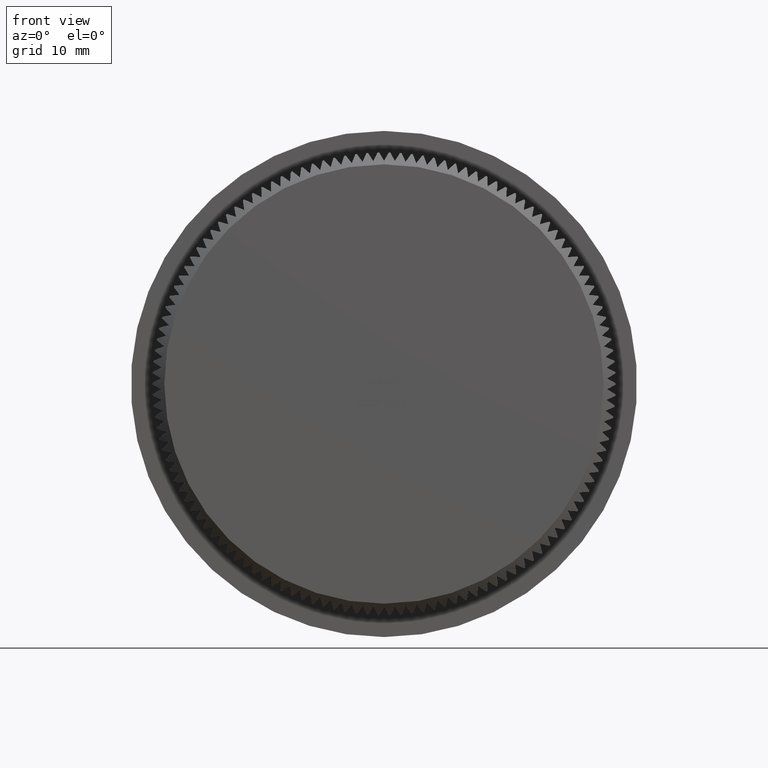
[diagram: clean part render]
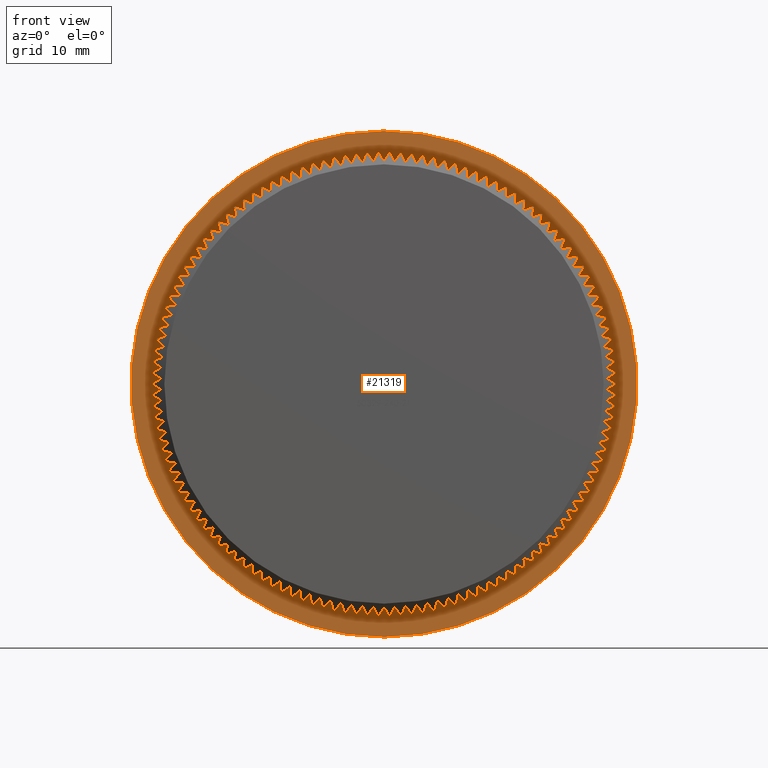
[diagram: same view with one face highlighted and labeled with its STEP entity id]
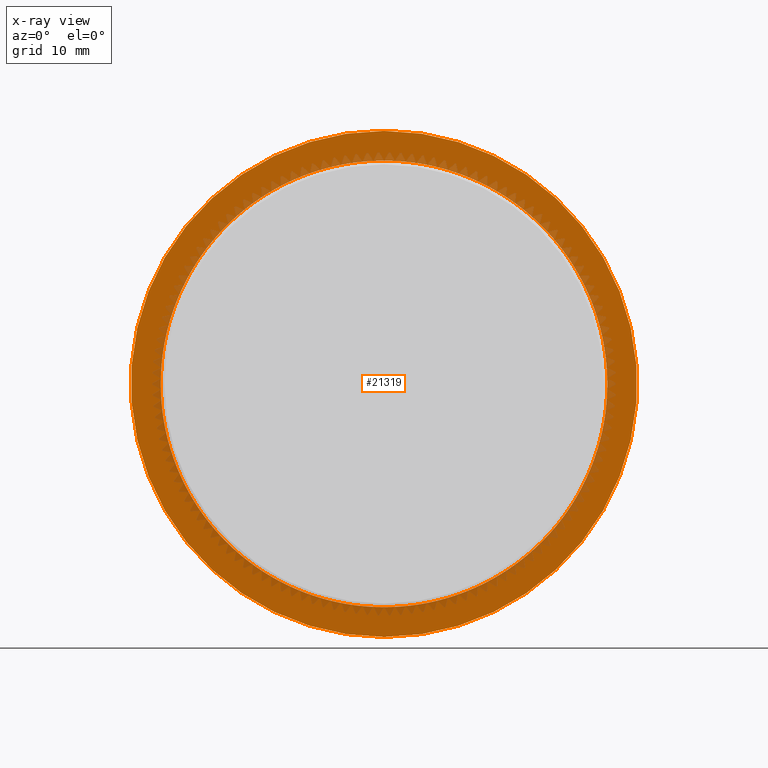
[diagram: x-ray of the same camera — body ghosted, the highlighted face saturated]
A machine part, front view. The second image highlights one B-rep face of the part: STEP entity #21319.
The next image is the same camera in x-ray: the body ghosted, the highlighted face saturated — about 15% of this face is hidden behind the body in this view.
In plain terms, the highlighted planar face has unit normal (0, -1, -0).
Its self-contained STEP definition (entity closure, byte-faithful):
#76 = VERTEX_POINT ( 'NONE', #20949 ) ;
#85 = DIRECTION ( 'NONE',  ( 0.0000000000000000000, 0.0000000000000000000, -1.000000000000000000 ) ) ;
#119 = CIRCLE ( 'NONE', #18824, 18.69999999999999600 ) ;
#126 = ORIENTED_EDGE ( 'NONE', *, *, #3598, .F. ) ;
#140 = CARTESIAN_POINT ( 'NONE',  ( 0.0000000000000000000, 8.000000000000001800, 0.0000000000000000000 ) ) ;
#165 = CARTESIAN_POINT ( 'NONE',  ( 17.78475685471942200, 8.000000000000001800, -5.778617794811344400 ) ) ;
#186 = EDGE_CURVE ( 'NONE', #11603, #13919, #27757, .T. ) ;
#232 = CARTESIAN_POINT ( 'NONE',  ( 0.0000000000000000000, 8.000000000000001800, 0.0000000000000000000 ) ) ;
#242 = ORIENTED_EDGE ( 'NONE', *, *, #16110, .F. ) ;
#272 = ORIENTED_EDGE ( 'NONE', *, *, #8804, .F. ) ;
#277 = DIRECTION ( 'NONE',  ( 0.0000000000000000000, 0.0000000000000000000, -1.000000000000000000 ) ) ;
#287 = CARTESIAN_POINT ( 'NONE',  ( 0.0000000000000000000, 8.000000000000001800, 0.0000000000000000000 ) ) ;
#306 = FACE_OUTER_BOUND ( 'NONE', #15563, .T. ) ;
#336 = DIRECTION ( 'NONE',  ( -0.0000000000000000000, -1.000000000000000000, -0.0000000000000000000 ) ) ;
#367 = CIRCLE ( 'NONE', #15293, 18.69999999999999600 ) ;
#371 = EDGE_CURVE ( 'NONE', #27379, #2333, #17138, .T. ) ;
#375 = CARTESIAN_POINT ( 'NONE',  ( 0.0000000000000000000, 8.000000000000001800, 0.0000000000000000000 ) ) ;
#385 = CARTESIAN_POINT ( 'NONE',  ( 0.9034601971267235400, 7.999999999999998200, 18.67816264176451600 ) ) ;
#441 = ORIENTED_EDGE ( 'NONE', *, *, #9381, .F. ) ;
#453 = DIRECTION ( 'NONE',  ( 0.0000000000000000000, 0.0000000000000000000, -1.000000000000000000 ) ) ;
#468 = AXIS2_PLACEMENT_3D ( 'NONE', #375, #469, #28191 ) ;
#469 = DIRECTION ( 'NONE',  ( -0.0000000000000000000, -1.000000000000000000, -0.0000000000000000000 ) ) ;
#484 = CARTESIAN_POINT ( 'NONE',  ( 15.88505038677252500, 8.000000000000005300, -9.866872564784536300 ) ) ;
#500 = DIRECTION ( 'NONE',  ( -0.0000000000000000000, -1.000000000000000000, -0.0000000000000000000 ) ) ;
#511 = VERTEX_POINT ( 'NONE', #10063 ) ;
#523 = DIRECTION ( 'NONE',  ( 0.0000000000000000000, 0.0000000000000000000, -1.000000000000000000 ) ) ;
#550 = CARTESIAN_POINT ( 'NONE',  ( 15.38979829221146300, 7.999999999999998200, -10.62281076387247600 ) ) ;
#558 = DIRECTION ( 'NONE',  ( 0.0000000000000000000, 0.0000000000000000000, -1.000000000000000000 ) ) ;
#564 = CARTESIAN_POINT ( 'NONE',  ( 0.0000000000000000000, 8.000000000000001800, 0.0000000000000000000 ) ) ;
#567 = ORIENTED_EDGE ( 'NONE', *, *, #10757, .F. ) ;
#609 = CARTESIAN_POINT ( 'NONE',  ( 14.85860261064730100, 7.999999999999998200, -11.35393889620976700 ) ) ;
#612 = ORIENTED_EDGE ( 'NONE', *, *, #21462, .F. ) ;
#632 = DIRECTION ( 'NONE',  ( -0.0000000000000000000, -1.000000000000000000, -0.0000000000000000000 ) ) ;
#634 = AXIS2_PLACEMENT_3D ( 'NONE', #140, #2614, #9419 ) ;
#638 = DIRECTION ( 'NONE',  ( -0.0000000000000000000, -1.000000000000000000, -0.0000000000000000000 ) ) ;
#647 = CIRCLE ( 'NONE', #10946, 18.69999999999999600 ) ;
#694 = ORIENTED_EDGE ( 'NONE', *, *, #17672, .F. ) ;
#824 = DIRECTION ( 'NONE',  ( 0.0000000000000000000, 0.0000000000000000000, -1.000000000000000000 ) ) ;
#877 = AXIS2_PLACEMENT_3D ( 'NONE', #6732, #22993, #13837 ) ;
#906 = EDGE_CURVE ( 'NONE', #8695, #4237, #5489, .T. ) ;
#922 = DIRECTION ( 'NONE',  ( 0.0000000000000000000, 0.0000000000000000000, -1.000000000000000000 ) ) ;
#931 = ORIENTED_EDGE ( 'NONE', *, *, #4775, .F. ) ;
#945 = CARTESIAN_POINT ( 'NONE',  ( 0.0000000000000000000, 8.000000000000001800, 0.0000000000000000000 ) ) ;
#949 = ORIENTED_EDGE ( 'NONE', *, *, #28092, .F. ) ;
#956 = CARTESIAN_POINT ( 'NONE',  ( -7.880200715346308700, 7.999999999999998200, 16.95855054790519000 ) ) ;
#970 = CARTESIAN_POINT ( 'NONE',  ( 0.0000000000000000000, 8.000000000000001800, 0.0000000000000000000 ) ) ;
#999 = EDGE_CURVE ( 'NONE', #25885, #8695, #17461, .T. ) ;
#1033 = DIRECTION ( 'NONE',  ( 0.0000000000000000000, 0.0000000000000000000, -1.000000000000000000 ) ) ;
#1034 = DIRECTION ( 'NONE',  ( 0.0000000000000000000, 0.0000000000000000000, -1.000000000000000000 ) ) ;
#1036 = VERTEX_POINT ( 'NONE', #28887 ) ;
#1054 = ORIENTED_EDGE ( 'NONE', *, *, #7780, .F. ) ;
#1064 = ORIENTED_EDGE ( 'NONE', *, *, #8762, .F. ) ;
#1078 = VERTEX_POINT ( 'NONE', #19492 ) ;
#1096 = CARTESIAN_POINT ( 'NONE',  ( 0.0000000000000000000, 8.000000000000001800, 0.0000000000000000000 ) ) ;
#1145 = EDGE_CURVE ( 'NONE', #10586, #19820, #23648, .T. ) ;
#1150 = CARTESIAN_POINT ( 'NONE',  ( -18.43307771342188100, 7.999999999999986700, 3.148276673189565100 ) ) ;
#1259 = CARTESIAN_POINT ( 'NONE',  ( 14.85860261064706100, 8.000000000000001800, 11.35393889621007800 ) ) ;
#1291 = DIRECTION ( 'NONE',  ( 0.0000000000000000000, 0.0000000000000000000, -1.000000000000000000 ) ) ;
#1315 = DIRECTION ( 'NONE',  ( 0.0000000000000000000, 0.0000000000000000000, -1.000000000000000000 ) ) ;
#1365 = ORIENTED_EDGE ( 'NONE', *, *, #1145, .F. ) ;
#1396 = DIRECTION ( 'NONE',  ( 0.0000000000000000000, 0.0000000000000000000, -1.000000000000000000 ) ) ;
#1407 = AXIS2_PLACEMENT_3D ( 'NONE', #5259, #26750, #24480 ) ;
#1515 = EDGE_CURVE ( 'NONE', #10997, #3474, #27324, .T. ) ;
#1532 = ORIENTED_EDGE ( 'NONE', *, *, #25346, .F. ) ;
#1577 = ORIENTED_EDGE ( 'NONE', *, *, #3153, .F. ) ;
#1603 = CARTESIAN_POINT ( 'NONE',  ( 0.0000000000000000000, 8.000000000000001800, 0.0000000000000000000 ) ) ;
#1616 = DIRECTION ( 'NONE',  ( -0.0000000000000000000, -1.000000000000000000, -0.0000000000000000000 ) ) ;
#1665 = CARTESIAN_POINT ( 'NONE',  ( 0.0000000000000000000, 8.000000000000001800, 0.0000000000000000000 ) ) ;
#1672 = CARTESIAN_POINT ( 'NONE',  ( -17.48480373821727300, 7.999999999999992900, 6.631111387695368000 ) ) ;
#1699 = DIRECTION ( 'NONE',  ( 0.0000000000000000000, 0.0000000000000000000, -1.000000000000000000 ) ) ;
#1702 = CARTESIAN_POINT ( 'NONE',  ( 0.0000000000000000000, 8.000000000000001800, 0.0000000000000000000 ) ) ;
#1736 = AXIS2_PLACEMENT_3D ( 'NONE', #4340, #11209, #30072 ) ;
#1761 = AXIS2_PLACEMENT_3D ( 'NONE', #15953, #27505, #16055 ) ;
#1790 = CARTESIAN_POINT ( 'NONE',  ( -17.14401405242005400, 8.000000000000001800, -7.468117712678579600 ) ) ;
#1819 = EDGE_CURVE ( 'NONE', #27783, #7060, #16718, .T. ) ;
#1826 = ORIENTED_EDGE ( 'NONE', *, *, #16707, .F. ) ;
#1828 = VERTEX_POINT ( 'NONE', #2892 ) ;
#1837 = CIRCLE ( 'NONE', #22231, 18.69999999999999600 ) ;
#1850 = ORIENTED_EDGE ( 'NONE', *, *, #18737, .F. ) ;
#1882 = ORIENTED_EDGE ( 'NONE', *, *, #28430, .F. ) ;
#1907 = CIRCLE ( 'NONE', #23258, 18.69999999999999600 ) ;
#1929 = CIRCLE ( 'NONE', #22444, 18.69999999999999600 ) ;
#1950 = CIRCLE ( 'NONE', #24941, 18.69999999999999600 ) ;
#1968 = VERTEX_POINT ( 'NONE', #10067 ) ;
#1981 = AXIS2_PLACEMENT_3D ( 'NONE', #15688, #6257, #20155 ) ;
#2012 = DIRECTION ( 'NONE',  ( -0.0000000000000000000, -1.000000000000000000, -0.0000000000000000000 ) ) ;
#2075 = CIRCLE ( 'NONE', #24652, 18.69999999999999600 ) ;
#2078 = ORIENTED_EDGE ( 'NONE', *, *, #1819, .F. ) ;
#2158 = VERTEX_POINT ( 'NONE', #22876 ) ;
#2173 = DIRECTION ( 'NONE',  ( 0.0000000000000000000, 0.0000000000000000000, -1.000000000000000000 ) ) ;
#2206 = CARTESIAN_POINT ( 'NONE',  ( 0.0000000000000000000, 8.000000000000001800, 0.0000000000000000000 ) ) ;
#2253 = DIRECTION ( 'NONE',  ( 0.0000000000000000000, 0.0000000000000000000, -1.000000000000000000 ) ) ;
#2255 = CIRCLE ( 'NONE', #11145, 18.69999999999999600 ) ;
#2262 = VERTEX_POINT ( 'NONE', #2856 ) ;
#2277 = ORIENTED_EDGE ( 'NONE', *, *, #13114, .F. ) ;
#2287 = CARTESIAN_POINT ( 'NONE',  ( -4.475202922177214000, 7.999999999999998200, -18.15661198586719700 ) ) ;
#2291 = CARTESIAN_POINT ( 'NONE',  ( 0.0000000000000000000, 8.000000000000001800, 0.0000000000000000000 ) ) ;
#2298 = CARTESIAN_POINT ( 'NONE',  ( 18.65087789923086300, 8.000000000000005300, 1.354530763025154800 ) ) ;
#2319 = AXIS2_PLACEMENT_3D ( 'NONE', #28340, #26229, #5634 ) ;
#2325 = VERTEX_POINT ( 'NONE', #9546 ) ;
#2333 = VERTEX_POINT ( 'NONE', #385 ) ;
#2365 = DIRECTION ( 'NONE',  ( -0.0000000000000000000, -1.000000000000000000, -0.0000000000000000000 ) ) ;
#2419 = VERTEX_POINT ( 'NONE', #14829 ) ;
#2453 = ORIENTED_EDGE ( 'NONE', *, *, #27121, .F. ) ;
#2461 = CIRCLE ( 'NONE', #468, 18.69999999999999600 ) ;
#2473 = AXIS2_PLACEMENT_3D ( 'NONE', #7530, #28611, #26490 ) ;
#2487 = EDGE_CURVE ( 'NONE', #9470, #16302, #25118, .T. ) ;
#2492 = DIRECTION ( 'NONE',  ( -0.0000000000000000000, -1.000000000000000000, -0.0000000000000000000 ) ) ;
#2614 = DIRECTION ( 'NONE',  ( -0.0000000000000000000, -1.000000000000000000, -0.0000000000000000000 ) ) ;
#2624 = EDGE_CURVE ( 'NONE', #9942, #23723, #11210, .T. ) ;
#2656 = CIRCLE ( 'NONE', #28293, 18.69999999999999600 ) ;
#2685 = AXIS2_PLACEMENT_3D ( 'NONE', #19556, #21882, #17310 ) ;
#2735 = CIRCLE ( 'NONE', #877, 18.69999999999999600 ) ;
#2742 = CARTESIAN_POINT ( 'NONE',  ( 0.0000000000000000000, 8.000000000000001800, 0.0000000000000000000 ) ) ;
#2746 = CARTESIAN_POINT ( 'NONE',  ( 0.0000000000000000000, 8.000000000000001800, 0.0000000000000000000 ) ) ;
#2772 = DIRECTION ( 'NONE',  ( 0.0000000000000000000, 0.0000000000000000000, -1.000000000000000000 ) ) ;
#2787 = AXIS2_PLACEMENT_3D ( 'NONE', #9515, #18649, #18852 ) ;
#2856 = CARTESIAN_POINT ( 'NONE',  ( -18.25944817410739400, 8.000000000000001800, 4.035164479557921300 ) ) ;
#2892 = CARTESIAN_POINT ( 'NONE',  ( 3.592769614514099700, 7.999999999999992900, 18.35162135880707600 ) ) ;
#2901 = CIRCLE ( 'NONE', #17430, 18.69999999999999600 ) ;
#2940 = VERTEX_POINT ( 'NONE', #6702 ) ;
#2947 = DIRECTION ( 'NONE',  ( 0.0000000000000000000, 0.0000000000000000000, -1.000000000000000000 ) ) ;
#2949 = VERTEX_POINT ( 'NONE', #17976 ) ;
#3053 = ORIENTED_EDGE ( 'NONE', *, *, #20437, .F. ) ;
#3071 = DIRECTION ( 'NONE',  ( 0.0000000000000000000, 0.0000000000000000000, -1.000000000000000000 ) ) ;
#3078 = AXIS2_PLACEMENT_3D ( 'NONE', #14587, #638, #16898 ) ;
#3153 = EDGE_CURVE ( 'NONE', #22139, #9470, #15936, .T. ) ;
#3160 = VERTEX_POINT ( 'NONE', #19303 ) ;
#3177 = CIRCLE ( 'NONE', #14761, 18.69999999999999600 ) ;
#3192 = CARTESIAN_POINT ( 'NONE',  ( 0.0000000000000000000, 8.000000000000001800, 0.0000000000000000000 ) ) ;
#3213 = CARTESIAN_POINT ( 'NONE',  ( 11.70966319396658400, 8.000000000000001800, -14.57991042098215600 ) ) ;
#3300 = EDGE_CURVE ( 'NONE', #24417, #2262, #20649, .T. ) ;
#3314 = EDGE_CURVE ( 'NONE', #7912, #1968, #19925, .T. ) ;
#3357 = DIRECTION ( 'NONE',  ( -0.0000000000000000000, -1.000000000000000000, -0.0000000000000000000 ) ) ;
#3375 = AXIS2_PLACEMENT_3D ( 'NONE', #25930, #14282, #7366 ) ;
#3384 = AXIS2_PLACEMENT_3D ( 'NONE', #5524, #8255, #22765 ) ;
#3400 = CARTESIAN_POINT ( 'NONE',  ( -17.78475685471938700, 7.999999999999986700, 5.778617794811465200 ) ) ;
#3426 = CARTESIAN_POINT ( 'NONE',  ( 21.19999999999999900, 8.000000000000000000, 0.0000000000000000000 ) ) ;
#3474 = VERTEX_POINT ( 'NONE', #8817 ) ;
#3541 = ORIENTED_EDGE ( 'NONE', *, *, #30198, .F. ) ;
#3564 = EDGE_CURVE ( 'NONE', #9423, #11792, #25052, .T. ) ;
#3598 = EDGE_CURVE ( 'NONE', #7060, #20713, #6850, .T. ) ;
#3643 = CARTESIAN_POINT ( 'NONE',  ( 0.0000000000000000000, 8.000000000000001800, 0.0000000000000000000 ) ) ;
#3647 = CIRCLE ( 'NONE', #20745, 18.69999999999999600 ) ;
#3672 = VERTEX_POINT ( 'NONE', #26333 ) ;
#3689 = DIRECTION ( 'NONE',  ( -0.0000000000000000000, -1.000000000000000000, -0.0000000000000000000 ) ) ;
#3755 = ORIENTED_EDGE ( 'NONE', *, *, #21821, .F. ) ;
#3789 = EDGE_CURVE ( 'NONE', #21366, #27690, #647, .T. ) ;
#3793 = CARTESIAN_POINT ( 'NONE',  ( -15.88505038677239300, 8.000000000000001800, -9.866872564784753100 ) ) ;
#3798 = ORIENTED_EDGE ( 'NONE', *, *, #5172, .F. ) ;
#3819 = CARTESIAN_POINT ( 'NONE',  ( 0.0000000000000000000, 8.000000000000001800, 0.0000000000000000000 ) ) ;
#3849 = CIRCLE ( 'NONE', #6789, 18.69999999999999600 ) ;
#3867 = DIRECTION ( 'NONE',  ( -0.0000000000000000000, -1.000000000000000000, -0.0000000000000000000 ) ) ;
#3872 = CARTESIAN_POINT ( 'NONE',  ( 0.0000000000000000000, 8.000000000000001800, 0.0000000000000000000 ) ) ;
#3906 = VERTEX_POINT ( 'NONE', #6741 ) ;
#3953 = VERTEX_POINT ( 'NONE', #16178 ) ;
#3966 = DIRECTION ( 'NONE',  ( -0.0000000000000000000, -1.000000000000000000, -0.0000000000000000000 ) ) ;
#4002 = DIRECTION ( 'NONE',  ( -0.0000000000000000000, -1.000000000000000000, -0.0000000000000000000 ) ) ;
#4012 = CIRCLE ( 'NONE', #19173, 18.69999999999999600 ) ;
#4020 = EDGE_CURVE ( 'NONE', #27978, #28527, #23919, .T. ) ;
#4035 = DIRECTION ( 'NONE',  ( 0.0000000000000000000, 0.0000000000000000000, -1.000000000000000000 ) ) ;
#4040 = CIRCLE ( 'NONE', #26979, 18.69999999999999600 ) ;
#4101 = CARTESIAN_POINT ( 'NONE',  ( 2.701945226944575000, 7.999999999999992900, -18.50376966973463100 ) ) ;
#4126 = CARTESIAN_POINT ( 'NONE',  ( 0.0000000000000000000, 8.000000000000001800, 0.0000000000000000000 ) ) ;
#4130 = EDGE_CURVE ( 'NONE', #28867, #27135, #16259, .T. ) ;
#4160 = AXIS2_PLACEMENT_3D ( 'NONE', #19807, #10255, #8041 ) ;
#4237 = VERTEX_POINT ( 'NONE', #16115 ) ;
#4257 = EDGE_CURVE ( 'NONE', #2158, #25519, #10068, .T. ) ;
#4260 = DIRECTION ( 'NONE',  ( 0.0000000000000000000, 0.0000000000000000000, -1.000000000000000000 ) ) ;
#4262 = CARTESIAN_POINT ( 'NONE',  ( 0.0000000000000000000, 8.000000000000001800, 0.0000000000000000000 ) ) ;
#4321 = CARTESIAN_POINT ( 'NONE',  ( 0.0000000000000000000, 8.000000000000001800, 0.0000000000000000000 ) ) ;
#4339 = CIRCLE ( 'NONE', #14568, 18.69999999999999600 ) ;
#4340 = CARTESIAN_POINT ( 'NONE',  ( 0.0000000000000000000, 8.000000000000001800, 0.0000000000000000000 ) ) ;
#4350 = AXIS2_PLACEMENT_3D ( 'NONE', #12674, #3357, #14629 ) ;
#4390 = AXIS2_PLACEMENT_3D ( 'NONE', #5754, #12847, #15196 ) ;
#4404 = DIRECTION ( 'NONE',  ( 0.0000000000000000000, 0.0000000000000000000, -1.000000000000000000 ) ) ;
#4417 = DIRECTION ( 'NONE',  ( -0.0000000000000000000, -1.000000000000000000, -0.0000000000000000000 ) ) ;
#4435 = AXIS2_PLACEMENT_3D ( 'NONE', #27931, #2365, #25788 ) ;
#4545 = ORIENTED_EDGE ( 'NONE', *, *, #23764, .F. ) ;
#4614 = DIRECTION ( 'NONE',  ( 0.0000000000000000000, 0.0000000000000000000, -1.000000000000000000 ) ) ;
#4633 = ORIENTED_EDGE ( 'NONE', *, *, #28689, .F. ) ;
#4643 = CARTESIAN_POINT ( 'NONE',  ( 0.0000000000000000000, 8.000000000000001800, 0.0000000000000000000 ) ) ;
#4656 = EDGE_CURVE ( 'NONE', #20713, #2949, #21067, .T. ) ;
#4661 = CARTESIAN_POINT ( 'NONE',  ( 0.0000000000000000000, 8.000000000000001800, 0.0000000000000000000 ) ) ;
#4674 = AXIS2_PLACEMENT_3D ( 'NONE', #2746, #23668, #2947 ) ;
#4682 = VERTEX_POINT ( 'NONE', #24360 ) ;
#4733 = CIRCLE ( 'NONE', #2685, 18.69999999999999600 ) ;
#4775 = EDGE_CURVE ( 'NONE', #23945, #17090, #14898, .T. ) ;
#4808 = VERTEX_POINT ( 'NONE', #19980 ) ;
#4818 = EDGE_CURVE ( 'NONE', #12297, #14709, #4012, .T. ) ;
#4838 = DIRECTION ( 'NONE',  ( -0.0000000000000000000, -1.000000000000000000, -0.0000000000000000000 ) ) ;
#4873 = CARTESIAN_POINT ( 'NONE',  ( 0.0000000000000000000, 8.000000000000001800, 0.0000000000000000000 ) ) ;
#4879 = AXIS2_PLACEMENT_3D ( 'NONE', #7246, #19040, #11889 ) ;
#4884 = ORIENTED_EDGE ( 'NONE', *, *, #15884, .F. ) ;
#4929 = CARTESIAN_POINT ( 'NONE',  ( 0.0000000000000000000, 8.000000000000001800, 0.0000000000000000000 ) ) ;
#5022 = CARTESIAN_POINT ( 'NONE',  ( 0.0000000000000000000, 8.000000000000001800, 0.0000000000000000000 ) ) ;
#5046 = DIRECTION ( 'NONE',  ( -0.0000000000000000000, -1.000000000000000000, -0.0000000000000000000 ) ) ;
#5084 = ORIENTED_EDGE ( 'NONE', *, *, #3314, .F. ) ;
#5106 = DIRECTION ( 'NONE',  ( 0.0000000000000000000, 0.0000000000000000000, -1.000000000000000000 ) ) ;
#5135 = CARTESIAN_POINT ( 'NONE',  ( 0.0000000000000000000, 8.000000000000001800, 0.0000000000000000000 ) ) ;
#5152 = CARTESIAN_POINT ( 'NONE',  ( 0.0000000000000000000, 8.000000000000001800, 0.0000000000000000000 ) ) ;
#5172 = EDGE_CURVE ( 'NONE', #19820, #7912, #9817, .T. ) ;
#5238 = DIRECTION ( 'NONE',  ( -0.0000000000000000000, -1.000000000000000000, -0.0000000000000000000 ) ) ;
#5241 = CARTESIAN_POINT ( 'NONE',  ( -12.40039370910288800, 8.000000000000001800, 13.99715099079956800 ) ) ;
#5259 = CARTESIAN_POINT ( 'NONE',  ( 0.0000000000000000000, 8.000000000000001800, 0.0000000000000000000 ) ) ;
#5266 = VERTEX_POINT ( 'NONE', #1672 ) ;
#5267 = VERTEX_POINT ( 'NONE', #6360 ) ;
#5294 = EDGE_CURVE ( 'NONE', #3953, #14815, #28390, .T. ) ;
#5309 = CARTESIAN_POINT ( 'NONE',  ( 10.99158421786936800, 7.999999999999998200, -15.12861779481142200 ) ) ;
#5313 = DIRECTION ( 'NONE',  ( 0.0000000000000000000, 0.0000000000000000000, -1.000000000000000000 ) ) ;
#5348 = DIRECTION ( 'NONE',  ( -0.0000000000000000000, -1.000000000000000000, -0.0000000000000000000 ) ) ;
#5358 = EDGE_CURVE ( 'NONE', #14815, #12584, #2901, .T. ) ;
#5416 = CARTESIAN_POINT ( 'NONE',  ( 0.0000000000000000000, 8.000000000000001800, 0.0000000000000000000 ) ) ;
#5422 = CARTESIAN_POINT ( 'NONE',  ( 0.0000000000000000000, 8.000000000000001800, 0.0000000000000000000 ) ) ;
#5453 = DIRECTION ( 'NONE',  ( 0.0000000000000000000, -1.000000000000000000, -0.0000000000000000000 ) ) ;
#5464 = ORIENTED_EDGE ( 'NONE', *, *, #7239, .T. ) ;
#5489 = CIRCLE ( 'NONE', #14024, 18.69999999999999600 ) ;
#5524 = CARTESIAN_POINT ( 'NONE',  ( 0.0000000000000000000, 8.000000000000001800, 0.0000000000000000000 ) ) ;
#5533 = ORIENTED_EDGE ( 'NONE', *, *, #14236, .F. ) ;
#5599 = AXIS2_PLACEMENT_3D ( 'NONE', #13605, #27499, #29910 ) ;
#5610 = DIRECTION ( 'NONE',  ( 0.0000000000000000000, 0.0000000000000000000, -1.000000000000000000 ) ) ;
#5619 = AXIS2_PLACEMENT_3D ( 'NONE', #15613, #8707, #10806 ) ;
#5634 = DIRECTION ( 'NONE',  ( 0.0000000000000000000, 0.0000000000000000000, -1.000000000000000000 ) ) ;
#5696 = ORIENTED_EDGE ( 'NONE', *, *, #3300, .F. ) ;
#5701 = AXIS2_PLACEMENT_3D ( 'NONE', #19600, #26456, #19397 ) ;
#5714 = ORIENTED_EDGE ( 'NONE', *, *, #26184, .F. ) ;
#5722 = CARTESIAN_POINT ( 'NONE',  ( 0.0000000000000000000, 8.000000000000001800, 0.0000000000000000000 ) ) ;
#5742 = DIRECTION ( 'NONE',  ( 0.0000000000000000000, 0.0000000000000000000, -1.000000000000000000 ) ) ;
#5754 = CARTESIAN_POINT ( 'NONE',  ( 0.0000000000000000000, 8.000000000000001800, 0.0000000000000000000 ) ) ;
#5763 = DIRECTION ( 'NONE',  ( -0.0000000000000000000, -1.000000000000000000, -0.0000000000000000000 ) ) ;
#5776 = CARTESIAN_POINT ( 'NONE',  ( 0.0000000000000000000, 8.000000000000001800, 0.0000000000000000000 ) ) ;
#5787 = DIRECTION ( 'NONE',  ( 0.0000000000000000000, 0.0000000000000000000, -1.000000000000000000 ) ) ;
#5867 = VERTEX_POINT ( 'NONE', #7174 ) ;
#5871 = CARTESIAN_POINT ( 'NONE',  ( 18.25944817410742300, 7.999999999999992900, -4.035164479557793400 ) ) ;
#5989 = CARTESIAN_POINT ( 'NONE',  ( 0.0000000000000000000, 8.000000000000001800, 0.0000000000000000000 ) ) ;
#6003 = AXIS2_PLACEMENT_3D ( 'NONE', #3426, #5453, #5742 ) ;
#6019 = ORIENTED_EDGE ( 'NONE', *, *, #29848, .F. ) ;
#6056 = CIRCLE ( 'NONE', #10967, 18.69999999999999600 ) ;
#6135 = DIRECTION ( 'NONE',  ( 0.0000000000000000000, 0.0000000000000000000, -1.000000000000000000 ) ) ;
#6159 = CIRCLE ( 'NONE', #17088, 18.69999999999999600 ) ;
#6173 = FACE_BOUND ( 'NONE', #21383, .T. ) ;
#6226 = AXIS2_PLACEMENT_3D ( 'NONE', #2291, #18532, #4614 ) ;
#6257 = DIRECTION ( 'NONE',  ( -0.0000000000000000000, -1.000000000000000000, -0.0000000000000000000 ) ) ;
#6280 = VERTEX_POINT ( 'NONE', #22796 ) ;
#6281 = CIRCLE ( 'NONE', #4879, 18.69999999999999600 ) ;
#6327 = CARTESIAN_POINT ( 'NONE',  ( -14.29270397420738300, 7.999999999999998200, 12.05854937816636000 ) ) ;
#6347 = ORIENTED_EDGE ( 'NONE', *, *, #6633, .F. ) ;
#6360 = CARTESIAN_POINT ( 'NONE',  ( 13.06216253015496100, 8.000000000000001800, 13.38170056591521400 ) ) ;
#6382 = DIRECTION ( 'NONE',  ( 0.0000000000000000000, 0.0000000000000000000, -1.000000000000000000 ) ) ;
#6426 = CARTESIAN_POINT ( 'NONE',  ( 17.14401405242015700, 7.999999999999998200, -7.468117712678344200 ) ) ;
#6520 = DIRECTION ( 'NONE',  ( 0.0000000000000000000, 0.0000000000000000000, -1.000000000000000000 ) ) ;
#6545 = CIRCLE ( 'NONE', #11365, 18.69999999999999600 ) ;
#6572 = ORIENTED_EDGE ( 'NONE', *, *, #999, .F. ) ;
#6580 = AXIS2_PLACEMENT_3D ( 'NONE', #24324, #3689, #19521 ) ;
#6618 = CARTESIAN_POINT ( 'NONE',  ( 15.38979829221124100, 8.000000000000001800, 10.62281076387279700 ) ) ;
#6633 = EDGE_CURVE ( 'NONE', #10619, #24823, #21041, .T. ) ;
#6650 = ORIENTED_EDGE ( 'NONE', *, *, #2487, .F. ) ;
#6653 = DIRECTION ( 'NONE',  ( 0.0000000000000000000, 0.0000000000000000000, -1.000000000000000000 ) ) ;
#6655 = CIRCLE ( 'NONE', #9545, 18.69999999999999600 ) ;
#6668 = DIRECTION ( 'NONE',  ( 0.0000000000000000000, 0.0000000000000000000, -1.000000000000000000 ) ) ;
#6700 = EDGE_CURVE ( 'NONE', #11958, #2419, #16325, .T. ) ;
#6702 = CARTESIAN_POINT ( 'NONE',  ( 14.29270397420722100, 7.999999999999998200, 12.05854937816655200 ) ) ;
#6732 = CARTESIAN_POINT ( 'NONE',  ( 0.0000000000000000000, 8.000000000000001800, 0.0000000000000000000 ) ) ;
#6741 = CARTESIAN_POINT ( 'NONE',  ( -7.051673539571605300, 8.000000000000005300, 17.31946593551040800 ) ) ;
#6756 = CARTESIAN_POINT ( 'NONE',  ( 18.69453986329960000, 8.000000000000001800, 0.4518620359158707100 ) ) ;
#6789 = AXIS2_PLACEMENT_3D ( 'NONE', #19743, #28730, #1033 ) ;
#6842 = DIRECTION ( 'NONE',  ( -0.0000000000000000000, -1.000000000000000000, -0.0000000000000000000 ) ) ;
#6850 = CIRCLE ( 'NONE', #14680, 18.69999999999999600 ) ;
#6881 = CIRCLE ( 'NONE', #18057, 18.69999999999999600 ) ;
#6912 = ORIENTED_EDGE ( 'NONE', *, *, #17420, .F. ) ;
#6926 = AXIS2_PLACEMENT_3D ( 'NONE', #3192, #28535, #16997 ) ;
#6928 = VERTEX_POINT ( 'NONE', #16243 ) ;
#6952 = EDGE_CURVE ( 'NONE', #5266, #9725, #20659, .T. ) ;
#6982 = VERTEX_POINT ( 'NONE', #7204 ) ;
#7060 = VERTEX_POINT ( 'NONE', #26168 ) ;
#7085 = EDGE_CURVE ( 'NONE', #17974, #28598, #29092, .T. ) ;
#7155 = DIRECTION ( 'NONE',  ( 0.0000000000000000000, 0.0000000000000000000, -1.000000000000000000 ) ) ;
#7157 = CIRCLE ( 'NONE', #25720, 18.69999999999999600 ) ;
#7174 = CARTESIAN_POINT ( 'NONE',  ( -14.85860261064714600, 7.999999999999998200, -11.35393889620996800 ) ) ;
#7204 = CARTESIAN_POINT ( 'NONE',  ( 2.701945226944187300, 7.999999999999989300, 18.50376966973469100 ) ) ;
#7226 = CARTESIAN_POINT ( 'NONE',  ( 12.40039370910298700, 7.999999999999998200, -13.99715099079948100 ) ) ;
#7237 = CARTESIAN_POINT ( 'NONE',  ( 0.0000000000000000000, 8.000000000000001800, 0.0000000000000000000 ) ) ;
#7239 = EDGE_CURVE ( 'NONE', #28527, #27978, #24349, .T. ) ;
#7246 = CARTESIAN_POINT ( 'NONE',  ( 0.0000000000000000000, 8.000000000000001800, 0.0000000000000000000 ) ) ;
#7279 = AXIS2_PLACEMENT_3D ( 'NONE', #945, #19755, #17312 ) ;
#7281 = EDGE_CURVE ( 'NONE', #9725, #24417, #18128, .T. ) ;
#7296 = ORIENTED_EDGE ( 'NONE', *, *, #18440, .F. ) ;
#7308 = DIRECTION ( 'NONE',  ( -0.0000000000000000000, -1.000000000000000000, -0.0000000000000000000 ) ) ;
#7344 = ORIENTED_EDGE ( 'NONE', *, *, #15536, .F. ) ;
#7365 = CARTESIAN_POINT ( 'NONE',  ( 0.0000000000000000000, 8.000000000000001800, 0.0000000000000000000 ) ) ;
#7366 = DIRECTION ( 'NONE',  ( 0.0000000000000000000, 0.0000000000000000000, -1.000000000000000000 ) ) ;
#7439 = ORIENTED_EDGE ( 'NONE', *, *, #12577, .F. ) ;
#7462 = ORIENTED_EDGE ( 'NONE', *, *, #10830, .F. ) ;
#7463 = ORIENTED_EDGE ( 'NONE', *, *, #27739, .F. ) ;
#7484 = DIRECTION ( 'NONE',  ( -0.0000000000000000000, -1.000000000000000000, -0.0000000000000000000 ) ) ;
#7530 = CARTESIAN_POINT ( 'NONE',  ( 0.0000000000000000000, 8.000000000000001800, 0.0000000000000000000 ) ) ;
#7780 = EDGE_CURVE ( 'NONE', #13919, #76, #15197, .T. ) ;
#7832 = EDGE_CURVE ( 'NONE', #2325, #4682, #26546, .T. ) ;
#7880 = EDGE_CURVE ( 'NONE', #9860, #9942, #25402, .T. ) ;
#7900 = CIRCLE ( 'NONE', #6580, 18.69999999999999600 ) ;
#7912 = VERTEX_POINT ( 'NONE', #16345 ) ;
#7923 = CARTESIAN_POINT ( 'NONE',  ( 18.43307771342183100, 8.000000000000005300, 3.148276673189821700 ) ) ;
#7964 = CIRCLE ( 'NONE', #16681, 18.69999999999999600 ) ;
#7971 = CARTESIAN_POINT ( 'NONE',  ( 0.0000000000000000000, 8.000000000000001800, 0.0000000000000000000 ) ) ;
#7984 = PLANE ( 'NONE',  #6003 ) ;
#7995 = VERTEX_POINT ( 'NONE', #18681 ) ;
#7997 = EDGE_CURVE ( 'NONE', #19605, #17996, #10446, .T. ) ;
#8016 = CARTESIAN_POINT ( 'NONE',  ( -0.9034601971269841100, 7.999999999999992900, 18.67816264176450500 ) ) ;
#8018 = DIRECTION ( 'NONE',  ( 0.0000000000000000000, 0.0000000000000000000, -1.000000000000000000 ) ) ;
#8041 = DIRECTION ( 'NONE',  ( 0.0000000000000000000, 0.0000000000000000000, -1.000000000000000000 ) ) ;
#8073 = CARTESIAN_POINT ( 'NONE',  ( 4.475202922177468100, 7.999999999999998200, -18.15661198586713400 ) ) ;
#8085 = AXIS2_PLACEMENT_3D ( 'NONE', #7971, #24554, #15173 ) ;
#8113 = ORIENTED_EDGE ( 'NONE', *, *, #5358, .F. ) ;
#8121 = CARTESIAN_POINT ( 'NONE',  ( 0.0000000000000000000, 8.000000000000001800, 0.0000000000000000000 ) ) ;
#8123 = CIRCLE ( 'NONE', #8267, 18.69999999999999600 ) ;
#8131 = DIRECTION ( 'NONE',  ( -0.0000000000000000000, -1.000000000000000000, -0.0000000000000000000 ) ) ;
#8139 = CIRCLE ( 'NONE', #25169, 18.69999999999999600 ) ;
#8255 = DIRECTION ( 'NONE',  ( -0.0000000000000000000, -1.000000000000000000, -0.0000000000000000000 ) ) ;
#8267 = AXIS2_PLACEMENT_3D ( 'NONE', #15439, #8828, #17767 ) ;
#8317 = DIRECTION ( 'NONE',  ( 0.0000000000000000000, 0.0000000000000000000, -1.000000000000000000 ) ) ;
#8324 = CIRCLE ( 'NONE', #8736, 18.69999999999999600 ) ;
#8330 = ORIENTED_EDGE ( 'NONE', *, *, #18782, .F. ) ;
#8361 = CARTESIAN_POINT ( 'NONE',  ( 0.0000000000000000000, 8.000000000000001800, 0.0000000000000000000 ) ) ;
#8373 = EDGE_CURVE ( 'NONE', #29703, #20176, #20586, .T. ) ;
#8460 = EDGE_CURVE ( 'NONE', #11580, #30076, #7900, .T. ) ;
#8473 = DIRECTION ( 'NONE',  ( 0.0000000000000000000, 0.0000000000000000000, -1.000000000000000000 ) ) ;
#8477 = AXIS2_PLACEMENT_3D ( 'NONE', #17721, #22393, #25076 ) ;
#8507 = CARTESIAN_POINT ( 'NONE',  ( 4.475202922177087000, 7.999999999999998200, 18.15661198586722900 ) ) ;
#8529 = CARTESIAN_POINT ( 'NONE',  ( -13.06216253015514000, 7.999999999999998200, 13.38170056591503800 ) ) ;
#8537 = DIRECTION ( 'NONE',  ( 0.0000000000000000000, 0.0000000000000000000, -1.000000000000000000 ) ) ;
#8542 = ORIENTED_EDGE ( 'NONE', *, *, #29405, .F. ) ;
#8579 = AXIS2_PLACEMENT_3D ( 'NONE', #27741, #6842, #4404 ) ;
#8618 = CARTESIAN_POINT ( 'NONE',  ( -3.592769614514354200, 7.999999999999989300, 18.35162135880702600 ) ) ;
#8681 = DIRECTION ( 'NONE',  ( 0.0000000000000000000, 0.0000000000000000000, -1.000000000000000000 ) ) ;
#8686 = DIRECTION ( 'NONE',  ( 0.0000000000000000000, 0.0000000000000000000, -1.000000000000000000 ) ) ;
#8695 = VERTEX_POINT ( 'NONE', #17057 ) ;
#8707 = DIRECTION ( 'NONE',  ( -0.0000000000000000000, -1.000000000000000000, -0.0000000000000000000 ) ) ;
#8734 = VERTEX_POINT ( 'NONE', #14426 ) ;
#8736 = AXIS2_PLACEMENT_3D ( 'NONE', #17905, #24764, #10673 ) ;
#8737 = ORIENTED_EDGE ( 'NONE', *, *, #4020, .T. ) ;
#8762 = EDGE_CURVE ( 'NONE', #23555, #24160, #22791, .T. ) ;
#8775 = CIRCLE ( 'NONE', #1761, 18.69999999999999600 ) ;
#8801 = CARTESIAN_POINT ( 'NONE',  ( 17.78475685471930100, 7.999999999999998200, 5.778617794811717400 ) ) ;
#8804 = EDGE_CURVE ( 'NONE', #2940, #3672, #3177, .T. ) ;
#8817 = CARTESIAN_POINT ( 'NONE',  ( 16.76318372742973000, 7.999999999999998200, -8.287681902705657000 ) ) ;
#8824 = AXIS2_PLACEMENT_3D ( 'NONE', #24835, #22561, #27011 ) ;
#8828 = DIRECTION ( 'NONE',  ( -0.0000000000000000000, -1.000000000000000000, -0.0000000000000000000 ) ) ;
#8856 = VERTEX_POINT ( 'NONE', #8529 ) ;
#8897 = DIRECTION ( 'NONE',  ( -0.0000000000000000000, -1.000000000000000000, -0.0000000000000000000 ) ) ;
#8899 = AXIS2_PLACEMENT_3D ( 'NONE', #25749, #9442, #28099 ) ;
#8929 = CIRCLE ( 'NONE', #15490, 18.69999999999999600 ) ;
#8942 = AXIS2_PLACEMENT_3D ( 'NONE', #5776, #17045, #8018 ) ;
#8953 = VERTEX_POINT ( 'NONE', #21393 ) ;
#8961 = EDGE_CURVE ( 'NONE', #8734, #17961, #7157, .T. ) ;
#8990 = CIRCLE ( 'NONE', #21301, 18.69999999999999600 ) ;
#9154 = AXIS2_PLACEMENT_3D ( 'NONE', #4661, #30093, #29996 ) ;
#9189 = DIRECTION ( 'NONE',  ( 0.0000000000000000000, 0.0000000000000000000, -1.000000000000000000 ) ) ;
#9209 = ORIENTED_EDGE ( 'NONE', *, *, #19829, .F. ) ;
#9215 = DIRECTION ( 'NONE',  ( -0.0000000000000000000, -1.000000000000000000, -0.0000000000000000000 ) ) ;
#9325 = ORIENTED_EDGE ( 'NONE', *, *, #26642, .F. ) ;
#9361 = VERTEX_POINT ( 'NONE', #9940 ) ;
#9381 = EDGE_CURVE ( 'NONE', #14709, #1078, #18764, .T. ) ;
#9388 = VERTEX_POINT ( 'NONE', #1259 ) ;
#9419 = DIRECTION ( 'NONE',  ( 0.0000000000000000000, 0.0000000000000000000, -1.000000000000000000 ) ) ;
#9420 = CIRCLE ( 'NONE', #24921, 18.69999999999999600 ) ;
#9423 = VERTEX_POINT ( 'NONE', #17728 ) ;
#9442 = DIRECTION ( 'NONE',  ( -0.0000000000000000000, -1.000000000000000000, -0.0000000000000000000 ) ) ;
#9466 = DIRECTION ( 'NONE',  ( -0.0000000000000000000, -1.000000000000000000, -0.0000000000000000000 ) ) ;
#9470 = VERTEX_POINT ( 'NONE', #25192 ) ;
#9480 = DIRECTION ( 'NONE',  ( -0.0000000000000000000, -1.000000000000000000, -0.0000000000000000000 ) ) ;
#9507 = DIRECTION ( 'NONE',  ( 0.0000000000000000000, 0.0000000000000000000, -1.000000000000000000 ) ) ;
#9515 = CARTESIAN_POINT ( 'NONE',  ( 0.0000000000000000000, 8.000000000000001800, 0.0000000000000000000 ) ) ;
#9545 = AXIS2_PLACEMENT_3D ( 'NONE', #24507, #12669, #21716 ) ;
#9546 = CARTESIAN_POINT ( 'NONE',  ( -4.475202922177339300, 7.999999999999998200, 18.15661198586716600 ) ) ;
#9589 = CARTESIAN_POINT ( 'NONE',  ( -18.65087789923087400, 7.999999999999998200, -1.354530763025024700 ) ) ;
#9634 = CARTESIAN_POINT ( 'NONE',  ( 0.0000000000000000000, 8.000000000000001800, 0.0000000000000000000 ) ) ;
#9725 = VERTEX_POINT ( 'NONE', #3400 ) ;
#9733 = DIRECTION ( 'NONE',  ( 0.0000000000000000000, 0.0000000000000000000, -1.000000000000000000 ) ) ;
#9768 = CARTESIAN_POINT ( 'NONE',  ( -10.24783388753234400, 8.000000000000005300, 15.64199158079122200 ) ) ;
#9797 = EDGE_CURVE ( 'NONE', #11792, #21366, #20555, .T. ) ;
#9809 = ORIENTED_EDGE ( 'NONE', *, *, #15319, .F. ) ;
#9817 = CIRCLE ( 'NONE', #4390, 18.69999999999999600 ) ;
#9829 = DIRECTION ( 'NONE',  ( 0.0000000000000000000, 0.0000000000000000000, -1.000000000000000000 ) ) ;
#9848 = ORIENTED_EDGE ( 'NONE', *, *, #8961, .F. ) ;
#9853 = VERTEX_POINT ( 'NONE', #22674 ) ;
#9860 = VERTEX_POINT ( 'NONE', #6426 ) ;
#9866 = ORIENTED_EDGE ( 'NONE', *, *, #29536, .F. ) ;
#9940 = CARTESIAN_POINT ( 'NONE',  ( 0.0000000000000000000, 8.000000000000001800, 18.69999999999999600 ) ) ;
#9942 = VERTEX_POINT ( 'NONE', #25975 ) ;
#9955 = DIRECTION ( 'NONE',  ( -0.0000000000000000000, -1.000000000000000000, -0.0000000000000000000 ) ) ;
#9990 = DIRECTION ( 'NONE',  ( -0.0000000000000000000, -1.000000000000000000, -0.0000000000000000000 ) ) ;
#9994 = ORIENTED_EDGE ( 'NONE', *, *, #18234, .F. ) ;
#10051 = DIRECTION ( 'NONE',  ( 0.0000000000000000000, 0.0000000000000000000, -1.000000000000000000 ) ) ;
#10063 = CARTESIAN_POINT ( 'NONE',  ( 18.25944817410733700, 8.000000000000001800, 4.035164479558176300 ) ) ;
#10067 = CARTESIAN_POINT ( 'NONE',  ( 5.347184186055251600, 8.000000000000001800, 17.91919700434147300 ) ) ;
#10068 = CIRCLE ( 'NONE', #22867, 18.69999999999999600 ) ;
#10099 = VERTEX_POINT ( 'NONE', #14932 ) ;
#10105 = DIRECTION ( 'NONE',  ( -0.0000000000000000000, -1.000000000000000000, -0.0000000000000000000 ) ) ;
#10255 = DIRECTION ( 'NONE',  ( -0.0000000000000000000, -1.000000000000000000, -0.0000000000000000000 ) ) ;
#10405 = CIRCLE ( 'NONE', #16630, 18.69999999999999600 ) ;
#10446 = CIRCLE ( 'NONE', #26085, 18.69999999999999600 ) ;
#10482 = ORIENTED_EDGE ( 'NONE', *, *, #15346, .F. ) ;
#10536 = DIRECTION ( 'NONE',  ( -0.0000000000000000000, -1.000000000000000000, -0.0000000000000000000 ) ) ;
#10586 = VERTEX_POINT ( 'NONE', #17736 ) ;
#10619 = VERTEX_POINT ( 'NONE', #5871 ) ;
#10654 = DIRECTION ( 'NONE',  ( 0.0000000000000000000, 0.0000000000000000000, -1.000000000000000000 ) ) ;
#10673 = DIRECTION ( 'NONE',  ( 0.0000000000000000000, 0.0000000000000000000, -1.000000000000000000 ) ) ;
#10755 = DIRECTION ( 'NONE',  ( 0.0000000000000000000, 0.0000000000000000000, -1.000000000000000000 ) ) ;
#10757 = EDGE_CURVE ( 'NONE', #76, #29151, #23440, .T. ) ;
#10763 = CIRCLE ( 'NONE', #25838, 18.69999999999999600 ) ;
#10785 = AXIS2_PLACEMENT_3D ( 'NONE', #7237, #9480, #5106 ) ;
#10796 = CARTESIAN_POINT ( 'NONE',  ( -11.70966319396648500, 7.999999999999998200, 14.57991042098223900 ) ) ;
#10798 = DIRECTION ( 'NONE',  ( -0.0000000000000000000, -1.000000000000000000, -0.0000000000000000000 ) ) ;
#10806 = DIRECTION ( 'NONE',  ( 0.0000000000000000000, 0.0000000000000000000, -1.000000000000000000 ) ) ;
#10826 = DIRECTION ( 'NONE',  ( 0.0000000000000000000, 0.0000000000000000000, -1.000000000000000000 ) ) ;
#10830 = EDGE_CURVE ( 'NONE', #29724, #26543, #13990, .T. ) ;
#10841 = CARTESIAN_POINT ( 'NONE',  ( -15.38979829221139200, 8.000000000000001800, 10.62281076387257700 ) ) ;
#10864 = CARTESIAN_POINT ( 'NONE',  ( 0.0000000000000000000, 8.000000000000001800, 0.0000000000000000000 ) ) ;
#10910 = EDGE_CURVE ( 'NONE', #24642, #28803, #3849, .T. ) ;
#10946 = AXIS2_PLACEMENT_3D ( 'NONE', #1665, #27235, #8681 ) ;
#10949 = DIRECTION ( 'NONE',  ( -0.0000000000000000000, -1.000000000000000000, -0.0000000000000000000 ) ) ;
#10967 = AXIS2_PLACEMENT_3D ( 'NONE', #23380, #9466, #85 ) ;
#10968 = CARTESIAN_POINT ( 'NONE',  ( 0.0000000000000000000, 8.000000000000001800, 0.0000000000000000000 ) ) ;
#10988 = DIRECTION ( 'NONE',  ( -0.0000000000000000000, -1.000000000000000000, -0.0000000000000000000 ) ) ;
#10997 = VERTEX_POINT ( 'NONE', #12820 ) ;
#11057 = CIRCLE ( 'NONE', #8899, 18.69999999999999600 ) ;
#11094 = CARTESIAN_POINT ( 'NONE',  ( 0.0000000000000000000, 8.000000000000001800, 0.0000000000000000000 ) ) ;
#11096 = ORIENTED_EDGE ( 'NONE', *, *, #12067, .F. ) ;
#11123 = ORIENTED_EDGE ( 'NONE', *, *, #22997, .F. ) ;
#11145 = AXIS2_PLACEMENT_3D ( 'NONE', #3819, #20036, #6135 ) ;
#11209 = DIRECTION ( 'NONE',  ( -0.0000000000000000000, -1.000000000000000000, -0.0000000000000000000 ) ) ;
#11210 = CIRCLE ( 'NONE', #23056, 18.69999999999999600 ) ;
#11273 = CARTESIAN_POINT ( 'NONE',  ( 0.0000000000000000000, 8.000000000000000000, 0.0000000000000000000 ) ) ;
#11292 = CIRCLE ( 'NONE', #14628, 18.69999999999999600 ) ;
#11365 = AXIS2_PLACEMENT_3D ( 'NONE', #26114, #16491, #523 ) ;
#11374 = ORIENTED_EDGE ( 'NONE', *, *, #23354, .F. ) ;
#11388 = CIRCLE ( 'NONE', #11515, 18.69999999999999600 ) ;
#11422 = ORIENTED_EDGE ( 'NONE', *, *, #14701, .F. ) ;
#11443 = VERTEX_POINT ( 'NONE', #21984 ) ;
#11499 = CARTESIAN_POINT ( 'NONE',  ( -10.24783388753223400, 8.000000000000001800, -15.64199158079129500 ) ) ;
#11515 = AXIS2_PLACEMENT_3D ( 'NONE', #1702, #29299, #10826 ) ;
#11522 = DIRECTION ( 'NONE',  ( 0.0000000000000000000, 0.0000000000000000000, -1.000000000000000000 ) ) ;
#11532 = ORIENTED_EDGE ( 'NONE', *, *, #1515, .F. ) ;
#11580 = VERTEX_POINT ( 'NONE', #1150 ) ;
#11603 = VERTEX_POINT ( 'NONE', #22792 ) ;
#11651 = CARTESIAN_POINT ( 'NONE',  ( -2.701945226944443900, 7.999999999999989300, 18.50376966973465200 ) ) ;
#11792 = VERTEX_POINT ( 'NONE', #5309 ) ;
#11832 = EDGE_CURVE ( 'NONE', #29151, #16432, #20134, .T. ) ;
#11851 = ORIENTED_EDGE ( 'NONE', *, *, #27693, .F. ) ;
#11863 = VERTEX_POINT ( 'NONE', #14550 ) ;
#11869 = CIRCLE ( 'NONE', #18777, 18.69999999999999600 ) ;
#11889 = DIRECTION ( 'NONE',  ( 0.0000000000000000000, 0.0000000000000000000, -1.000000000000000000 ) ) ;
#11898 = ORIENTED_EDGE ( 'NONE', *, *, #17695, .F. ) ;
#11912 = CARTESIAN_POINT ( 'NONE',  ( 0.0000000000000000000, 8.000000000000001800, 0.0000000000000000000 ) ) ;
#11919 = CARTESIAN_POINT ( 'NONE',  ( 0.0000000000000000000, 8.000000000000001800, 0.0000000000000000000 ) ) ;
#11942 = VERTEX_POINT ( 'NONE', #28808 ) ;
#11956 = DIRECTION ( 'NONE',  ( 0.0000000000000000000, 0.0000000000000000000, -1.000000000000000000 ) ) ;
#11958 = VERTEX_POINT ( 'NONE', #3793 ) ;
#11970 = CARTESIAN_POINT ( 'NONE',  ( 18.43307771342189800, 8.000000000000001800, -3.148276673189435800 ) ) ;
#12005 = DIRECTION ( 'NONE',  ( -0.0000000000000000000, -1.000000000000000000, -0.0000000000000000000 ) ) ;
#12067 = EDGE_CURVE ( 'NONE', #16191, #9388, #13933, .T. ) ;
#12102 = EDGE_CURVE ( 'NONE', #20176, #9853, #15039, .T. ) ;
#12130 = DIRECTION ( 'NONE',  ( -0.0000000000000000000, -1.000000000000000000, -0.0000000000000000000 ) ) ;
#12208 = ORIENTED_EDGE ( 'NONE', *, *, #12514, .F. ) ;
#12244 = ORIENTED_EDGE ( 'NONE', *, *, #10910, .F. ) ;
#12277 = ORIENTED_EDGE ( 'NONE', *, *, #27740, .F. ) ;
#12297 = VERTEX_POINT ( 'NONE', #12658 ) ;
#12327 = CARTESIAN_POINT ( 'NONE',  ( 18.56365594563358500, 7.999999999999989300, 2.254035920774741800 ) ) ;
#12390 = ORIENTED_EDGE ( 'NONE', *, *, #7997, .F. ) ;
#12399 = AXIS2_PLACEMENT_3D ( 'NONE', #14651, #500, #21442 ) ;
#12472 = ORIENTED_EDGE ( 'NONE', *, *, #25575, .F. ) ;
#12478 = ORIENTED_EDGE ( 'NONE', *, *, #15327, .F. ) ;
#12514 = EDGE_CURVE ( 'NONE', #16127, #26867, #1950, .T. ) ;
#12577 = EDGE_CURVE ( 'NONE', #9388, #2940, #8139, .T. ) ;
#12579 = VERTEX_POINT ( 'NONE', #27957 ) ;
#12584 = VERTEX_POINT ( 'NONE', #16592 ) ;
#12593 = CARTESIAN_POINT ( 'NONE',  ( 0.0000000000000000000, 8.000000000000001800, 0.0000000000000000000 ) ) ;
#12603 = CARTESIAN_POINT ( 'NONE',  ( 0.9034601971271151200, 7.999999999999992900, -18.67816264176449800 ) ) ;
#12655 = EDGE_CURVE ( 'NONE', #2262, #11580, #2656, .T. ) ;
#12656 = DIRECTION ( 'NONE',  ( -0.0000000000000000000, -1.000000000000000000, -0.0000000000000000000 ) ) ;
#12658 = CARTESIAN_POINT ( 'NONE',  ( -7.880200715346195900, 7.999999999999989300, -16.95855054790524400 ) ) ;
#12668 = VERTEX_POINT ( 'NONE', #14482 ) ;
#12669 = DIRECTION ( 'NONE',  ( -0.0000000000000000000, -1.000000000000000000, -0.0000000000000000000 ) ) ;
#12674 = CARTESIAN_POINT ( 'NONE',  ( 0.0000000000000000000, 8.000000000000001800, 0.0000000000000000000 ) ) ;
#12768 = EDGE_CURVE ( 'NONE', #20821, #2158, #24496, .T. ) ;
#12790 = AXIS2_PLACEMENT_3D ( 'NONE', #12959, #24484, #4035 ) ;
#12810 = VERTEX_POINT ( 'NONE', #30032 ) ;
#12820 = CARTESIAN_POINT ( 'NONE',  ( 16.34320221011596500, 7.999999999999998200, -9.087889827636582000 ) ) ;
#12840 = EDGE_CURVE ( 'NONE', #2419, #5867, #29941, .T. ) ;
#12847 = DIRECTION ( 'NONE',  ( -0.0000000000000000000, -1.000000000000000000, -0.0000000000000000000 ) ) ;
#12862 = CARTESIAN_POINT ( 'NONE',  ( -5.347184186055377700, 8.000000000000005300, -17.91919700434143400 ) ) ;
#12921 = AXIS2_PLACEMENT_3D ( 'NONE', #21797, #19677, #24072 ) ;
#12950 = AXIS2_PLACEMENT_3D ( 'NONE', #29142, #15172, #1034 ) ;
#12959 = CARTESIAN_POINT ( 'NONE',  ( 0.0000000000000000000, 8.000000000000001800, 0.0000000000000000000 ) ) ;
#12973 = DIRECTION ( 'NONE',  ( 0.0000000000000000000, 0.0000000000000000000, -1.000000000000000000 ) ) ;
#12991 = EDGE_CURVE ( 'NONE', #26543, #9423, #6655, .T. ) ;
#13057 = CIRCLE ( 'NONE', #5619, 18.69999999999999600 ) ;
#13099 = CIRCLE ( 'NONE', #6926, 18.69999999999999600 ) ;
#13114 = EDGE_CURVE ( 'NONE', #18806, #10099, #15735, .T. ) ;
#13123 = CARTESIAN_POINT ( 'NONE',  ( 0.0000000000000000000, 8.000000000000001800, 0.0000000000000000000 ) ) ;
#13134 = CARTESIAN_POINT ( 'NONE',  ( -8.690323317218487300, 8.000000000000005300, 16.55802767971501100 ) ) ;
#13136 = DIRECTION ( 'NONE',  ( 0.0000000000000000000, 0.0000000000000000000, -1.000000000000000000 ) ) ;
#13155 = DIRECTION ( 'NONE',  ( -0.0000000000000000000, -1.000000000000000000, -0.0000000000000000000 ) ) ;
#13193 = DIRECTION ( 'NONE',  ( 0.0000000000000000000, 0.0000000000000000000, -1.000000000000000000 ) ) ;
#13220 = DIRECTION ( 'NONE',  ( 0.0000000000000000000, 0.0000000000000000000, -1.000000000000000000 ) ) ;
#13324 = CIRCLE ( 'NONE', #12950, 18.69999999999999600 ) ;
#13326 = DIRECTION ( 'NONE',  ( -0.0000000000000000000, -1.000000000000000000, -0.0000000000000000000 ) ) ;
#13422 = CARTESIAN_POINT ( 'NONE',  ( 13.69342406537847400, 7.999999999999998200, -12.73499655931298200 ) ) ;
#13442 = DIRECTION ( 'NONE',  ( -0.0000000000000000000, -1.000000000000000000, -0.0000000000000000000 ) ) ;
#13449 = CARTESIAN_POINT ( 'NONE',  ( -17.48480373821722400, 7.999999999999998200, -6.631111387695488800 ) ) ;
#13468 = CIRCLE ( 'NONE', #14536, 18.69999999999999600 ) ;
#13474 = VERTEX_POINT ( 'NONE', #2287 ) ;
#13496 = CIRCLE ( 'NONE', #17994, 18.69999999999999600 ) ;
#13528 = EDGE_CURVE ( 'NONE', #17291, #26791, #6281, .T. ) ;
#13538 = AXIS2_PLACEMENT_3D ( 'NONE', #22366, #4002, #8473 ) ;
#13586 = VERTEX_POINT ( 'NONE', #12603 ) ;
#13605 = CARTESIAN_POINT ( 'NONE',  ( 0.0000000000000000000, 8.000000000000001800, 0.0000000000000000000 ) ) ;
#13646 = CARTESIAN_POINT ( 'NONE',  ( 0.0000000000000000000, 8.000000000000001800, 0.0000000000000000000 ) ) ;
#13670 = DIRECTION ( 'NONE',  ( -0.0000000000000000000, -1.000000000000000000, -0.0000000000000000000 ) ) ;
#13748 = AXIS2_PLACEMENT_3D ( 'NONE', #2742, #19092, #9829 ) ;
#13831 = EDGE_CURVE ( 'NONE', #26028, #23829, #8775, .T. ) ;
#13837 = DIRECTION ( 'NONE',  ( 0.0000000000000000000, 0.0000000000000000000, -1.000000000000000000 ) ) ;
#13852 = CARTESIAN_POINT ( 'NONE',  ( -18.69453986329960700, 7.999999999999998200, 0.4518620359156096400 ) ) ;
#13873 = AXIS2_PLACEMENT_3D ( 'NONE', #14462, #23511, #23612 ) ;
#13919 = VERTEX_POINT ( 'NONE', #6327 ) ;
#13933 = CIRCLE ( 'NONE', #23758, 18.69999999999999600 ) ;
#13990 = CIRCLE ( 'NONE', #18848, 18.69999999999999600 ) ;
#14024 = AXIS2_PLACEMENT_3D ( 'NONE', #18999, #21419, #9733 ) ;
#14033 = CARTESIAN_POINT ( 'NONE',  ( 0.0000000000000000000, 8.000000000000001800, 0.0000000000000000000 ) ) ;
#14108 = VERTEX_POINT ( 'NONE', #484 ) ;
#14201 = VERTEX_POINT ( 'NONE', #7923 ) ;
#14236 = EDGE_CURVE ( 'NONE', #27648, #4808, #11292, .T. ) ;
#14241 = CARTESIAN_POINT ( 'NONE',  ( 0.0000000000000000000, 8.000000000000001800, 0.0000000000000000000 ) ) ;
#14254 = ORIENTED_EDGE ( 'NONE', *, *, #20702, .F. ) ;
#14268 = AXIS2_PLACEMENT_3D ( 'NONE', #14656, #19522, #5610 ) ;
#14273 = CARTESIAN_POINT ( 'NONE',  ( 8.690323317218601000, 8.000000000000005300, -16.55802767971495000 ) ) ;
#14282 = DIRECTION ( 'NONE',  ( -0.0000000000000000000, -1.000000000000000000, -0.0000000000000000000 ) ) ;
#14301 = ORIENTED_EDGE ( 'NONE', *, *, #29836, .F. ) ;
#14307 = ORIENTED_EDGE ( 'NONE', *, *, #19722, .F. ) ;
#14389 = CARTESIAN_POINT ( 'NONE',  ( -8.690323317218370000, 8.000000000000005300, -16.55802767971507100 ) ) ;
#14426 = CARTESIAN_POINT ( 'NONE',  ( -17.78475685471934400, 7.999999999999998200, -5.778617794811589500 ) ) ;
#14462 = CARTESIAN_POINT ( 'NONE',  ( 0.0000000000000000000, 8.000000000000001800, 0.0000000000000000000 ) ) ;
#14482 = CARTESIAN_POINT ( 'NONE',  ( -6.206676853503492600, 8.000000000000001800, 17.63993090791978700 ) ) ;
#14504 = AXIS2_PLACEMENT_3D ( 'NONE', #19025, #26394, #5313 ) ;
#14536 = AXIS2_PLACEMENT_3D ( 'NONE', #4126, #10798, #29755 ) ;
#14550 = CARTESIAN_POINT ( 'NONE',  ( -12.40039370910279200, 8.000000000000001800, -13.99715099079965200 ) ) ;
#14568 = AXIS2_PLACEMENT_3D ( 'NONE', #29074, #12656, #24279 ) ;
#14587 = CARTESIAN_POINT ( 'NONE',  ( 0.0000000000000000000, 8.000000000000001800, 0.0000000000000000000 ) ) ;
#14628 = AXIS2_PLACEMENT_3D ( 'NONE', #1096, #24198, #5787 ) ;
#14629 = DIRECTION ( 'NONE',  ( 0.0000000000000000000, 0.0000000000000000000, -1.000000000000000000 ) ) ;
#14651 = CARTESIAN_POINT ( 'NONE',  ( 0.0000000000000000000, 8.000000000000001800, 0.0000000000000000000 ) ) ;
#14656 = CARTESIAN_POINT ( 'NONE',  ( 0.0000000000000000000, 8.000000000000001800, 0.0000000000000000000 ) ) ;
#14673 = AXIS2_PLACEMENT_3D ( 'NONE', #29516, #1616, #13193 ) ;
#14680 = AXIS2_PLACEMENT_3D ( 'NONE', #11919, #5348, #18965 ) ;
#14701 = EDGE_CURVE ( 'NONE', #1078, #29600, #20016, .T. ) ;
#14709 = VERTEX_POINT ( 'NONE', #22389 ) ;
#14721 = CARTESIAN_POINT ( 'NONE',  ( 0.0000000000000000000, 8.000000000000001800, -18.69999999999999600 ) ) ;
#14761 = AXIS2_PLACEMENT_3D ( 'NONE', #17465, #8131, #24610 ) ;
#14779 = AXIS2_PLACEMENT_3D ( 'NONE', #27327, #13326, #13136 ) ;
#14808 = EDGE_CURVE ( 'NONE', #6928, #12579, #27014, .T. ) ;
#14815 = VERTEX_POINT ( 'NONE', #13852 ) ;
#14829 = CARTESIAN_POINT ( 'NONE',  ( -15.38979829221131900, 8.000000000000001800, -10.62281076387268400 ) ) ;
#14873 = ORIENTED_EDGE ( 'NONE', *, *, #24332, .F. ) ;
#14898 = CIRCLE ( 'NONE', #19748, 18.69999999999999600 ) ;
#14914 = DIRECTION ( 'NONE',  ( -0.0000000000000000000, -1.000000000000000000, -0.0000000000000000000 ) ) ;
#14932 = CARTESIAN_POINT ( 'NONE',  ( 3.592769614514483400, 7.999999999999998200, -18.35162135880700200 ) ) ;
#14954 = DIRECTION ( 'NONE',  ( -0.0000000000000000000, -1.000000000000000000, -0.0000000000000000000 ) ) ;
#15003 = ORIENTED_EDGE ( 'NONE', *, *, #4257, .F. ) ;
#15039 = CIRCLE ( 'NONE', #9154, 18.69999999999999600 ) ;
#15109 = CARTESIAN_POINT ( 'NONE',  ( 0.0000000000000000000, 8.000000000000001800, 0.0000000000000000000 ) ) ;
#15116 = DIRECTION ( 'NONE',  ( 0.0000000000000000000, 0.0000000000000000000, -1.000000000000000000 ) ) ;
#15172 = DIRECTION ( 'NONE',  ( -0.0000000000000000000, -1.000000000000000000, -0.0000000000000000000 ) ) ;
#15173 = DIRECTION ( 'NONE',  ( 0.0000000000000000000, 0.0000000000000000000, -1.000000000000000000 ) ) ;
#15187 = CIRCLE ( 'NONE', #25326, 18.69999999999999600 ) ;
#15196 = DIRECTION ( 'NONE',  ( 0.0000000000000000000, 0.0000000000000000000, -1.000000000000000000 ) ) ;
#15197 = CIRCLE ( 'NONE', #29193, 18.69999999999999600 ) ;
#15293 = AXIS2_PLACEMENT_3D ( 'NONE', #29701, #22549, #20204 ) ;
#15303 = AXIS2_PLACEMENT_3D ( 'NONE', #8361, #10949, #10654 ) ;
#15317 = CARTESIAN_POINT ( 'NONE',  ( -10.99158421786926700, 7.999999999999989300, 15.12861779481150000 ) ) ;
#15319 = EDGE_CURVE ( 'NONE', #18575, #19324, #1837, .T. ) ;
#15327 = EDGE_CURVE ( 'NONE', #4808, #19605, #24409, .T. ) ;
#15346 = EDGE_CURVE ( 'NONE', #26194, #1036, #21443, .T. ) ;
#15350 = CIRCLE ( 'NONE', #8085, 18.69999999999999600 ) ;
#15374 = CIRCLE ( 'NONE', #12921, 18.69999999999999600 ) ;
#15439 = CARTESIAN_POINT ( 'NONE',  ( 0.0000000000000000000, 8.000000000000001800, 0.0000000000000000000 ) ) ;
#15464 = AXIS2_PLACEMENT_3D ( 'NONE', #23411, #4417, #23022 ) ;
#15490 = AXIS2_PLACEMENT_3D ( 'NONE', #20670, #30056, #16203 ) ;
#15515 = DIRECTION ( 'NONE',  ( -0.0000000000000000000, -1.000000000000000000, -0.0000000000000000000 ) ) ;
#15536 = EDGE_CURVE ( 'NONE', #12668, #3906, #4040, .T. ) ;
#15563 = EDGE_LOOP ( 'NONE', ( #5464, #8737 ) ) ;
#15591 = CIRCLE ( 'NONE', #12399, 18.69999999999999600 ) ;
#15597 = CARTESIAN_POINT ( 'NONE',  ( -3.592769614514227200, 8.000000000000001800, -18.35162135880704800 ) ) ;
#15609 = VERTEX_POINT ( 'NONE', #27893 ) ;
#15613 = CARTESIAN_POINT ( 'NONE',  ( 0.0000000000000000000, 8.000000000000001800, 0.0000000000000000000 ) ) ;
#15626 = DIRECTION ( 'NONE',  ( -0.0000000000000000000, -1.000000000000000000, -0.0000000000000000000 ) ) ;
#15670 = CARTESIAN_POINT ( 'NONE',  ( -13.69342406537829500, 7.999999999999998200, -12.73499655931317400 ) ) ;
#15688 = CARTESIAN_POINT ( 'NONE',  ( 0.0000000000000000000, 8.000000000000001800, 0.0000000000000000000 ) ) ;
#15705 = ORIENTED_EDGE ( 'NONE', *, *, #16890, .F. ) ;
#15715 = CIRCLE ( 'NONE', #15464, 18.69999999999999600 ) ;
#15735 = CIRCLE ( 'NONE', #29838, 18.69999999999999600 ) ;
#15811 = AXIS2_PLACEMENT_3D ( 'NONE', #12593, #9955, #3071 ) ;
#15822 = EDGE_CURVE ( 'NONE', #16730, #12297, #17332, .T. ) ;
#15883 = DIRECTION ( 'NONE',  ( -0.0000000000000000000, -1.000000000000000000, -0.0000000000000000000 ) ) ;
#15884 = EDGE_CURVE ( 'NONE', #24160, #14108, #28904, .T. ) ;
#15924 = CIRCLE ( 'NONE', #29522, 18.69999999999999600 ) ;
#15936 = CIRCLE ( 'NONE', #4350, 18.69999999999999600 ) ;
#15945 = ORIENTED_EDGE ( 'NONE', *, *, #22526, .F. ) ;
#15953 = CARTESIAN_POINT ( 'NONE',  ( 0.0000000000000000000, 8.000000000000001800, 0.0000000000000000000 ) ) ;
#15962 = CARTESIAN_POINT ( 'NONE',  ( -18.56365594563361300, 8.000000000000001800, 2.254035920774482000 ) ) ;
#16016 = DIRECTION ( 'NONE',  ( 0.0000000000000000000, 0.0000000000000000000, -1.000000000000000000 ) ) ;
#16055 = DIRECTION ( 'NONE',  ( 0.0000000000000000000, 0.0000000000000000000, -1.000000000000000000 ) ) ;
#16109 = DIRECTION ( 'NONE',  ( -0.0000000000000000000, -1.000000000000000000, -0.0000000000000000000 ) ) ;
#16110 = EDGE_CURVE ( 'NONE', #17961, #29703, #18206, .T. ) ;
#16115 = CARTESIAN_POINT ( 'NONE',  ( 6.206676853503619600, 8.000000000000001800, -17.63993090791974100 ) ) ;
#16127 = VERTEX_POINT ( 'NONE', #23735 ) ;
#16174 = VERTEX_POINT ( 'NONE', #22875 ) ;
#16178 = CARTESIAN_POINT ( 'NONE',  ( -18.65087789923088500, 7.999999999999998200, 1.354530763024894400 ) ) ;
#16191 = VERTEX_POINT ( 'NONE', #6618 ) ;
#16203 = DIRECTION ( 'NONE',  ( 0.0000000000000000000, 0.0000000000000000000, -1.000000000000000000 ) ) ;
#16243 = CARTESIAN_POINT ( 'NONE',  ( -16.76318372742967700, 7.999999999999998200, 8.287681902705768900 ) ) ;
#16259 = CIRCLE ( 'NONE', #25634, 18.69999999999999600 ) ;
#16302 = VERTEX_POINT ( 'NONE', #11651 ) ;
#16325 = CIRCLE ( 'NONE', #15303, 18.69999999999999600 ) ;
#16345 = CARTESIAN_POINT ( 'NONE',  ( 6.206676853503251900, 7.999999999999986700, 17.63993090791987600 ) ) ;
#16432 = VERTEX_POINT ( 'NONE', #21823 ) ;
#16446 = DIRECTION ( 'NONE',  ( -0.0000000000000000000, -1.000000000000000000, -0.0000000000000000000 ) ) ;
#16491 = DIRECTION ( 'NONE',  ( -0.0000000000000000000, -1.000000000000000000, -0.0000000000000000000 ) ) ;
#16527 = EDGE_CURVE ( 'NONE', #5267, #16127, #11388, .T. ) ;
#16592 = CARTESIAN_POINT ( 'NONE',  ( -18.69453986329960700, 7.999999999999989300, -0.4518620359157403700 ) ) ;
#16612 = DIRECTION ( 'NONE',  ( 0.0000000000000000000, 0.0000000000000000000, -1.000000000000000000 ) ) ;
#16630 = AXIS2_PLACEMENT_3D ( 'NONE', #22783, #25569, #27516 ) ;
#16646 = ORIENTED_EDGE ( 'NONE', *, *, #28478, .F. ) ;
#16681 = AXIS2_PLACEMENT_3D ( 'NONE', #7365, #21567, #19261 ) ;
#16684 = ORIENTED_EDGE ( 'NONE', *, *, #7085, .F. ) ;
#16707 = EDGE_CURVE ( 'NONE', #3906, #25500, #26388, .T. ) ;
#16718 = CIRCLE ( 'NONE', #13873, 18.69999999999999600 ) ;
#16730 = VERTEX_POINT ( 'NONE', #14389 ) ;
#16743 = ORIENTED_EDGE ( 'NONE', *, *, #7880, .F. ) ;
#16793 = DIRECTION ( 'NONE',  ( 0.0000000000000000000, 0.0000000000000000000, -1.000000000000000000 ) ) ;
#16890 = EDGE_CURVE ( 'NONE', #16432, #16174, #29978, .T. ) ;
#16898 = DIRECTION ( 'NONE',  ( 0.0000000000000000000, 0.0000000000000000000, -1.000000000000000000 ) ) ;
#16997 = DIRECTION ( 'NONE',  ( 0.0000000000000000000, 0.0000000000000000000, -1.000000000000000000 ) ) ;
#17003 = ORIENTED_EDGE ( 'NONE', *, *, #2624, .F. ) ;
#17006 = DIRECTION ( 'NONE',  ( 0.0000000000000000000, 0.0000000000000000000, -1.000000000000000000 ) ) ;
#17045 = DIRECTION ( 'NONE',  ( -0.0000000000000000000, -1.000000000000000000, -0.0000000000000000000 ) ) ;
#17057 = CARTESIAN_POINT ( 'NONE',  ( 5.347184186055627300, 7.999999999999998200, -17.91919700434136300 ) ) ;
#17088 = AXIS2_PLACEMENT_3D ( 'NONE', #970, #26671, #24392 ) ;
#17090 = VERTEX_POINT ( 'NONE', #27431 ) ;
#17138 = CIRCLE ( 'NONE', #1736, 18.69999999999999600 ) ;
#17187 = DIRECTION ( 'NONE',  ( -0.0000000000000000000, -1.000000000000000000, -0.0000000000000000000 ) ) ;
#17212 = CARTESIAN_POINT ( 'NONE',  ( -2.701945226944316500, 7.999999999999992900, -18.50376966973467000 ) ) ;
#17291 = VERTEX_POINT ( 'NONE', #21626 ) ;
#17310 = DIRECTION ( 'NONE',  ( 0.0000000000000000000, 0.0000000000000000000, -1.000000000000000000 ) ) ;
#17312 = DIRECTION ( 'NONE',  ( 0.0000000000000000000, 0.0000000000000000000, -1.000000000000000000 ) ) ;
#17332 = CIRCLE ( 'NONE', #22636, 18.69999999999999600 ) ;
#17341 = DIRECTION ( 'NONE',  ( 0.0000000000000000000, 0.0000000000000000000, -1.000000000000000000 ) ) ;
#17352 = ORIENTED_EDGE ( 'NONE', *, *, #11832, .F. ) ;
#17396 = DIRECTION ( 'NONE',  ( -0.0000000000000000000, -1.000000000000000000, -0.0000000000000000000 ) ) ;
#17420 = EDGE_CURVE ( 'NONE', #2949, #15609, #28175, .T. ) ;
#17430 = AXIS2_PLACEMENT_3D ( 'NONE', #25599, #15883, #9189 ) ;
#17437 = ORIENTED_EDGE ( 'NONE', *, *, #3789, .F. ) ;
#17458 = CARTESIAN_POINT ( 'NONE',  ( 0.0000000000000000000, 8.000000000000001800, 0.0000000000000000000 ) ) ;
#17461 = CIRCLE ( 'NONE', #4674, 18.69999999999999600 ) ;
#17465 = CARTESIAN_POINT ( 'NONE',  ( 0.0000000000000000000, 8.000000000000001800, 0.0000000000000000000 ) ) ;
#17483 = EDGE_CURVE ( 'NONE', #12579, #5266, #1929, .T. ) ;
#17515 = VERTEX_POINT ( 'NONE', #25129 ) ;
#17522 = EDGE_CURVE ( 'NONE', #29860, #26194, #8123, .T. ) ;
#17604 = DIRECTION ( 'NONE',  ( -0.0000000000000000000, -1.000000000000000000, -0.0000000000000000000 ) ) ;
#17672 = EDGE_CURVE ( 'NONE', #1828, #6982, #18276, .T. ) ;
#17695 = EDGE_CURVE ( 'NONE', #14201, #511, #15374, .T. ) ;
#17721 = CARTESIAN_POINT ( 'NONE',  ( 0.0000000000000000000, 8.000000000000001800, 0.0000000000000000000 ) ) ;
#17728 = CARTESIAN_POINT ( 'NONE',  ( 10.24783388753245300, 8.000000000000001800, -15.64199158079115300 ) ) ;
#17736 = CARTESIAN_POINT ( 'NONE',  ( 7.880200715346076000, 7.999999999999992900, 16.95855054790529700 ) ) ;
#17767 = DIRECTION ( 'NONE',  ( 0.0000000000000000000, 0.0000000000000000000, -1.000000000000000000 ) ) ;
#17787 = DIRECTION ( 'NONE',  ( -0.0000000000000000000, -1.000000000000000000, -0.0000000000000000000 ) ) ;
#17793 = ORIENTED_EDGE ( 'NONE', *, *, #906, .F. ) ;
#17819 = VERTEX_POINT ( 'NONE', #10796 ) ;
#17868 = ORIENTED_EDGE ( 'NONE', *, *, #18022, .F. ) ;
#17905 = CARTESIAN_POINT ( 'NONE',  ( 0.0000000000000000000, 8.000000000000001800, 0.0000000000000000000 ) ) ;
#17961 = VERTEX_POINT ( 'NONE', #13449 ) ;
#17974 = VERTEX_POINT ( 'NONE', #15597 ) ;
#17976 = CARTESIAN_POINT ( 'NONE',  ( 16.34320221011577700, 7.999999999999989300, 9.087889827636928400 ) ) ;
#17978 = CARTESIAN_POINT ( 'NONE',  ( 0.0000000000000000000, 8.000000000000001800, 0.0000000000000000000 ) ) ;
#17994 = AXIS2_PLACEMENT_3D ( 'NONE', #10968, #17604, #22476 ) ;
#17996 = VERTEX_POINT ( 'NONE', #6756 ) ;
#18002 = AXIS2_PLACEMENT_3D ( 'NONE', #29466, #13155, #22705 ) ;
#18022 = EDGE_CURVE ( 'NONE', #27690, #29057, #15715, .T. ) ;
#18057 = AXIS2_PLACEMENT_3D ( 'NONE', #26858, #14914, #17341 ) ;
#18067 = DIRECTION ( 'NONE',  ( -0.0000000000000000000, -1.000000000000000000, -0.0000000000000000000 ) ) ;
#18069 = DIRECTION ( 'NONE',  ( 0.0000000000000000000, 0.0000000000000000000, -1.000000000000000000 ) ) ;
#18111 = DIRECTION ( 'NONE',  ( 0.0000000000000000000, 0.0000000000000000000, -1.000000000000000000 ) ) ;
#18128 = CIRCLE ( 'NONE', #26269, 18.69999999999999600 ) ;
#18129 = ORIENTED_EDGE ( 'NONE', *, *, #28610, .F. ) ;
#18189 = EDGE_CURVE ( 'NONE', #29641, #27783, #27419, .T. ) ;
#18206 = CIRCLE ( 'NONE', #3375, 18.69999999999999600 ) ;
#18234 = EDGE_CURVE ( 'NONE', #3672, #5267, #1907, .T. ) ;
#18276 = CIRCLE ( 'NONE', #19741, 18.69999999999999600 ) ;
#18297 = CARTESIAN_POINT ( 'NONE',  ( -18.56365594563359500, 8.000000000000005300, -2.254035920774611200 ) ) ;
#18310 = DIRECTION ( 'NONE',  ( -0.0000000000000000000, -1.000000000000000000, -0.0000000000000000000 ) ) ;
#18384 = ORIENTED_EDGE ( 'NONE', *, *, #17483, .F. ) ;
#18408 = CARTESIAN_POINT ( 'NONE',  ( 0.0000000000000000000, 8.000000000000001800, 0.0000000000000000000 ) ) ;
#18430 = CARTESIAN_POINT ( 'NONE',  ( 18.69453986329961000, 7.999999999999989300, -0.4518620359154793000 ) ) ;
#18437 = DIRECTION ( 'NONE',  ( -0.0000000000000000000, -1.000000000000000000, -0.0000000000000000000 ) ) ;
#18440 = EDGE_CURVE ( 'NONE', #1968, #25100, #29218, .T. ) ;
#18441 = DIRECTION ( 'NONE',  ( 0.0000000000000000000, 0.0000000000000000000, -1.000000000000000000 ) ) ;
#18444 = CIRCLE ( 'NONE', #2319, 18.69999999999999600 ) ;
#18532 = DIRECTION ( 'NONE',  ( -0.0000000000000000000, -1.000000000000000000, -0.0000000000000000000 ) ) ;
#18536 = ORIENTED_EDGE ( 'NONE', *, *, #12102, .F. ) ;
#18538 = CARTESIAN_POINT ( 'NONE',  ( 0.0000000000000000000, 8.000000000000001800, 0.0000000000000000000 ) ) ;
#18541 = EDGE_CURVE ( 'NONE', #8856, #11603, #19379, .T. ) ;
#18575 = VERTEX_POINT ( 'NONE', #28249 ) ;
#18581 = DIRECTION ( 'NONE',  ( -0.0000000000000000000, -1.000000000000000000, -0.0000000000000000000 ) ) ;
#18582 = DIRECTION ( 'NONE',  ( 0.0000000000000000000, 0.0000000000000000000, -1.000000000000000000 ) ) ;
#18587 = ORIENTED_EDGE ( 'NONE', *, *, #18902, .F. ) ;
#18626 = ORIENTED_EDGE ( 'NONE', *, *, #12768, .F. ) ;
#18628 = ORIENTED_EDGE ( 'NONE', *, *, #8373, .F. ) ;
#18638 = ORIENTED_EDGE ( 'NONE', *, *, #15822, .F. ) ;
#18649 = DIRECTION ( 'NONE',  ( -0.0000000000000000000, -1.000000000000000000, -0.0000000000000000000 ) ) ;
#18655 = CIRCLE ( 'NONE', #24109, 18.69999999999999600 ) ;
#18681 = CARTESIAN_POINT ( 'NONE',  ( -9.480149266314041900, 8.000000000000001800, -16.11883277065697200 ) ) ;
#18737 = EDGE_CURVE ( 'NONE', #29513, #17819, #15350, .T. ) ;
#18764 = CIRCLE ( 'NONE', #12790, 18.69999999999999600 ) ;
#18777 = AXIS2_PLACEMENT_3D ( 'NONE', #4643, #20894, #23242 ) ;
#18782 = EDGE_CURVE ( 'NONE', #27200, #8856, #13496, .T. ) ;
#18803 = AXIS2_PLACEMENT_3D ( 'NONE', #30207, #18581, #277 ) ;
#18806 = VERTEX_POINT ( 'NONE', #4101 ) ;
#18824 = AXIS2_PLACEMENT_3D ( 'NONE', #11912, #4838, #23230 ) ;
#18848 = AXIS2_PLACEMENT_3D ( 'NONE', #5022, #12005, #16793 ) ;
#18852 = DIRECTION ( 'NONE',  ( 0.0000000000000000000, 0.0000000000000000000, -1.000000000000000000 ) ) ;
#18902 = EDGE_CURVE ( 'NONE', #16174, #6928, #2255, .T. ) ;
#18908 = DIRECTION ( 'NONE',  ( 0.0000000000000000000, 0.0000000000000000000, -1.000000000000000000 ) ) ;
#18965 = DIRECTION ( 'NONE',  ( 0.0000000000000000000, 0.0000000000000000000, -1.000000000000000000 ) ) ;
#18999 = CARTESIAN_POINT ( 'NONE',  ( 0.0000000000000000000, 8.000000000000001800, 0.0000000000000000000 ) ) ;
#19025 = CARTESIAN_POINT ( 'NONE',  ( 0.0000000000000000000, 8.000000000000000000, 0.0000000000000000000 ) ) ;
#19040 = DIRECTION ( 'NONE',  ( -0.0000000000000000000, -1.000000000000000000, -0.0000000000000000000 ) ) ;
#19049 = DIRECTION ( 'NONE',  ( 0.0000000000000000000, 0.0000000000000000000, -1.000000000000000000 ) ) ;
#19063 = ORIENTED_EDGE ( 'NONE', *, *, #18189, .F. ) ;
#19078 = ORIENTED_EDGE ( 'NONE', *, *, #6952, .F. ) ;
#19092 = DIRECTION ( 'NONE',  ( -0.0000000000000000000, -1.000000000000000000, -0.0000000000000000000 ) ) ;
#19173 = AXIS2_PLACEMENT_3D ( 'NONE', #27077, #2012, #20691 ) ;
#19186 = AXIS2_PLACEMENT_3D ( 'NONE', #4321, #20261, #6668 ) ;
#19195 = ORIENTED_EDGE ( 'NONE', *, *, #20360, .F. ) ;
#19222 = ORIENTED_EDGE ( 'NONE', *, *, #186, .F. ) ;
#19226 = ORIENTED_EDGE ( 'NONE', *, *, #27340, .F. ) ;
#19261 = DIRECTION ( 'NONE',  ( 0.0000000000000000000, 0.0000000000000000000, -1.000000000000000000 ) ) ;
#19291 = DIRECTION ( 'NONE',  ( 0.0000000000000000000, 0.0000000000000000000, -1.000000000000000000 ) ) ;
#19303 = CARTESIAN_POINT ( 'NONE',  ( 18.04317284752445300, 8.000000000000005300, -4.912627972313398300 ) ) ;
#19324 = VERTEX_POINT ( 'NONE', #23845 ) ;
#19379 = CIRCLE ( 'NONE', #29139, 18.69999999999999600 ) ;
#19397 = DIRECTION ( 'NONE',  ( 0.0000000000000000000, 0.0000000000000000000, -1.000000000000000000 ) ) ;
#19476 = ORIENTED_EDGE ( 'NONE', *, *, #27825, .F. ) ;
#19492 = CARTESIAN_POINT ( 'NONE',  ( -6.206676853503373600, 8.000000000000005300, -17.63993090791982600 ) ) ;
#19521 = DIRECTION ( 'NONE',  ( 0.0000000000000000000, 0.0000000000000000000, -1.000000000000000000 ) ) ;
#19522 = DIRECTION ( 'NONE',  ( -0.0000000000000000000, -1.000000000000000000, -0.0000000000000000000 ) ) ;
#19556 = CARTESIAN_POINT ( 'NONE',  ( 0.0000000000000000000, 8.000000000000001800, 0.0000000000000000000 ) ) ;
#19591 = DIRECTION ( 'NONE',  ( -0.0000000000000000000, -1.000000000000000000, -0.0000000000000000000 ) ) ;
#19600 = CARTESIAN_POINT ( 'NONE',  ( 0.0000000000000000000, 8.000000000000001800, 0.0000000000000000000 ) ) ;
#19605 = VERTEX_POINT ( 'NONE', #18430 ) ;
#19656 = AXIS2_PLACEMENT_3D ( 'NONE', #28708, #23900, #10051 ) ;
#19677 = DIRECTION ( 'NONE',  ( -0.0000000000000000000, -1.000000000000000000, -0.0000000000000000000 ) ) ;
#19703 = CARTESIAN_POINT ( 'NONE',  ( -11.70966319396638200, 8.000000000000005300, -14.57991042098231700 ) ) ;
#19722 = EDGE_CURVE ( 'NONE', #23723, #3160, #13099, .T. ) ;
#19741 = AXIS2_PLACEMENT_3D ( 'NONE', #25949, #7484, #558 ) ;
#19743 = CARTESIAN_POINT ( 'NONE',  ( 0.0000000000000000000, 8.000000000000001800, 0.0000000000000000000 ) ) ;
#19748 = AXIS2_PLACEMENT_3D ( 'NONE', #23055, #3867, #11522 ) ;
#19755 = DIRECTION ( 'NONE',  ( -0.0000000000000000000, -1.000000000000000000, -0.0000000000000000000 ) ) ;
#19807 = CARTESIAN_POINT ( 'NONE',  ( 0.0000000000000000000, 8.000000000000001800, 0.0000000000000000000 ) ) ;
#19820 = VERTEX_POINT ( 'NONE', #24923 ) ;
#19823 = DIRECTION ( 'NONE',  ( -0.0000000000000000000, -1.000000000000000000, -0.0000000000000000000 ) ) ;
#19829 = EDGE_CURVE ( 'NONE', #19324, #8734, #367, .T. ) ;
#19846 = ORIENTED_EDGE ( 'NONE', *, *, #12991, .F. ) ;
#19908 = CIRCLE ( 'NONE', #21261, 18.69999999999999600 ) ;
#19910 = AXIS2_PLACEMENT_3D ( 'NONE', #17458, #3966, #20090 ) ;
#19925 = CIRCLE ( 'NONE', #19910, 18.69999999999999600 ) ;
#19980 = CARTESIAN_POINT ( 'NONE',  ( 18.65087789923089200, 8.000000000000001800, -1.354530763024764300 ) ) ;
#19996 = ORIENTED_EDGE ( 'NONE', *, *, #9797, .F. ) ;
#20016 = CIRCLE ( 'NONE', #1981, 18.69999999999999600 ) ;
#20036 = DIRECTION ( 'NONE',  ( -0.0000000000000000000, -1.000000000000000000, -0.0000000000000000000 ) ) ;
#20079 = CARTESIAN_POINT ( 'NONE',  ( 0.0000000000000000000, 8.000000000000001800, 0.0000000000000000000 ) ) ;
#20090 = DIRECTION ( 'NONE',  ( 0.0000000000000000000, 0.0000000000000000000, -1.000000000000000000 ) ) ;
#20104 = ORIENTED_EDGE ( 'NONE', *, *, #12840, .F. ) ;
#20134 = CIRCLE ( 'NONE', #19656, 18.69999999999999600 ) ;
#20155 = DIRECTION ( 'NONE',  ( 0.0000000000000000000, 0.0000000000000000000, -1.000000000000000000 ) ) ;
#20176 = VERTEX_POINT ( 'NONE', #27449 ) ;
#20190 = EDGE_CURVE ( 'NONE', #26832, #2325, #13468, .T. ) ;
#20204 = DIRECTION ( 'NONE',  ( 0.0000000000000000000, 0.0000000000000000000, -1.000000000000000000 ) ) ;
#20231 = AXIS2_PLACEMENT_3D ( 'NONE', #3872, #24907, #20279 ) ;
#20244 = CARTESIAN_POINT ( 'NONE',  ( 0.0000000000000000000, 8.000000000000001800, 0.0000000000000000000 ) ) ;
#20261 = DIRECTION ( 'NONE',  ( -0.0000000000000000000, -1.000000000000000000, -0.0000000000000000000 ) ) ;
#20269 = CARTESIAN_POINT ( 'NONE',  ( 0.0000000000000000000, 8.000000000000001800, 0.0000000000000000000 ) ) ;
#20279 = DIRECTION ( 'NONE',  ( 0.0000000000000000000, 0.0000000000000000000, -1.000000000000000000 ) ) ;
#20299 = ORIENTED_EDGE ( 'NONE', *, *, #24100, .F. ) ;
#20360 = EDGE_CURVE ( 'NONE', #11863, #20821, #6545, .T. ) ;
#20437 = EDGE_CURVE ( 'NONE', #25500, #25974, #3647, .T. ) ;
#20476 = AXIS2_PLACEMENT_3D ( 'NONE', #28550, #9990, #28746 ) ;
#20487 = AXIS2_PLACEMENT_3D ( 'NONE', #1603, #10536, #1396 ) ;
#20515 = DIRECTION ( 'NONE',  ( -0.0000000000000000000, -1.000000000000000000, -0.0000000000000000000 ) ) ;
#20543 = CARTESIAN_POINT ( 'NONE',  ( 0.0000000000000000000, 8.000000000000001800, 0.0000000000000000000 ) ) ;
#20555 = CIRCLE ( 'NONE', #26308, 18.69999999999999600 ) ;
#20576 = EDGE_CURVE ( 'NONE', #4237, #28867, #25871, .T. ) ;
#20586 = CIRCLE ( 'NONE', #2473, 18.69999999999999600 ) ;
#20590 = CIRCLE ( 'NONE', #25147, 18.69999999999999600 ) ;
#20649 = CIRCLE ( 'NONE', #20487, 18.69999999999999600 ) ;
#20654 = ORIENTED_EDGE ( 'NONE', *, *, #7832, .F. ) ;
#20659 = CIRCLE ( 'NONE', #18803, 18.69999999999999600 ) ;
#20670 = CARTESIAN_POINT ( 'NONE',  ( 0.0000000000000000000, 8.000000000000001800, 0.0000000000000000000 ) ) ;
#20691 = DIRECTION ( 'NONE',  ( 0.0000000000000000000, 0.0000000000000000000, -1.000000000000000000 ) ) ;
#20702 = EDGE_CURVE ( 'NONE', #14108, #10997, #25128, .T. ) ;
#20713 = VERTEX_POINT ( 'NONE', #21026 ) ;
#20745 = AXIS2_PLACEMENT_3D ( 'NONE', #5722, #17396, #21963 ) ;
#20821 = VERTEX_POINT ( 'NONE', #19703 ) ;
#20894 = DIRECTION ( 'NONE',  ( -0.0000000000000000000, -1.000000000000000000, -0.0000000000000000000 ) ) ;
#20929 = DIRECTION ( 'NONE',  ( -0.0000000000000000000, -1.000000000000000000, -0.0000000000000000000 ) ) ;
#20949 = CARTESIAN_POINT ( 'NONE',  ( -14.85860261064722300, 8.000000000000005300, 11.35393889620986700 ) ) ;
#21026 = CARTESIAN_POINT ( 'NONE',  ( 16.76318372742956000, 7.999999999999998200, 8.287681902706006900 ) ) ;
#21041 = CIRCLE ( 'NONE', #24088, 18.69999999999999600 ) ;
#21067 = CIRCLE ( 'NONE', #7279, 18.69999999999999600 ) ;
#21229 = ORIENTED_EDGE ( 'NONE', *, *, #22409, .F. ) ;
#21261 = AXIS2_PLACEMENT_3D ( 'NONE', #28464, #9215, #453 ) ;
#21301 = AXIS2_PLACEMENT_3D ( 'NONE', #5152, #12130, #28174 ) ;
#21319 = ADVANCED_FACE ( 'NONE', ( #306, #6173 ), #7984, .T. ) ;
#21366 = VERTEX_POINT ( 'NONE', #3213 ) ;
#21383 = EDGE_LOOP ( 'NONE', ( #18129, #30005, #28870, #7463, #694, #11123, #7296, #5084, #3798, #1365, #8542, #9325, #931, #22785, #12277, #12208, #25866, #9994, #272, #7439, #11096, #612, #6912, #22672, #126, #2078, #19063, #16646, #12472, #11898, #11374, #15945, #26197, #12390, #12478, #5533, #3541, #6347, #24149, #14307, #17003, #16743, #19476, #11532, #14254, #4884, #1064, #4633, #22191, #11851, #17868, #17437, #19996, #23422, #19846, #7462, #949, #24211, #22780, #17793, #6572, #1882, #2277, #5714, #25417, #28017, #24983, #4545, #2453, #16684, #23659, #21229, #11422, #441, #29022, #18638, #25909, #14301, #15003, #18626, #19195, #23293, #12244, #14873, #24721, #20104, #22370, #9866, #18536, #18628, #242, #9848, #9209, #9809, #27192, #10482, #22494, #1532, #8113, #23002, #26027, #24189, #28093, #5696, #29307, #19078, #18384, #29965, #18587, #15705, #17352, #567, #1054, #19222, #29828, #8330, #26958, #1850, #19226, #6019, #3755, #3053, #1826, #7344, #28232, #20654, #21731, #20299, #6650, #1577 ) ) ;
#21393 = CARTESIAN_POINT ( 'NONE',  ( 18.04317284752435700, 7.999999999999986700, 4.912627972313777600 ) ) ;
#21414 = CIRCLE ( 'NONE', #27092, 18.69999999999999600 ) ;
#21419 = DIRECTION ( 'NONE',  ( -0.0000000000000000000, -1.000000000000000000, -0.0000000000000000000 ) ) ;
#21442 = DIRECTION ( 'NONE',  ( 0.0000000000000000000, 0.0000000000000000000, -1.000000000000000000 ) ) ;
#21443 = CIRCLE ( 'NONE', #15811, 18.69999999999999600 ) ;
#21462 = EDGE_CURVE ( 'NONE', #15609, #16191, #23963, .T. ) ;
#21489 = AXIS2_PLACEMENT_3D ( 'NONE', #5422, #17187, #824 ) ;
#21505 = CARTESIAN_POINT ( 'NONE',  ( 14.29270397420746300, 7.999999999999998200, -12.05854937816626600 ) ) ;
#21549 = AXIS2_PLACEMENT_3D ( 'NONE', #5989, #24717, #1291 ) ;
#21567 = DIRECTION ( 'NONE',  ( -0.0000000000000000000, -1.000000000000000000, -0.0000000000000000000 ) ) ;
#21595 = DIRECTION ( 'NONE',  ( -0.0000000000000000000, -1.000000000000000000, -0.0000000000000000000 ) ) ;
#21626 = CARTESIAN_POINT ( 'NONE',  ( -0.9034601971268542100, 7.999999999999989300, -18.67816264176451200 ) ) ;
#21668 = CARTESIAN_POINT ( 'NONE',  ( 0.0000000000000000000, 8.000000000000000000, -21.19999999999999900 ) ) ;
#21675 = AXIS2_PLACEMENT_3D ( 'NONE', #13123, #19823, #10755 ) ;
#21703 = AXIS2_PLACEMENT_3D ( 'NONE', #14241, #25985, #18908 ) ;
#21716 = DIRECTION ( 'NONE',  ( 0.0000000000000000000, 0.0000000000000000000, -1.000000000000000000 ) ) ;
#21731 = ORIENTED_EDGE ( 'NONE', *, *, #20190, .F. ) ;
#21797 = CARTESIAN_POINT ( 'NONE',  ( 0.0000000000000000000, 8.000000000000001800, 0.0000000000000000000 ) ) ;
#21821 = EDGE_CURVE ( 'NONE', #25974, #17515, #22131, .T. ) ;
#21823 = CARTESIAN_POINT ( 'NONE',  ( -15.88505038677245900, 8.000000000000001800, 9.866872564784644700 ) ) ;
#21882 = DIRECTION ( 'NONE',  ( -0.0000000000000000000, -1.000000000000000000, -0.0000000000000000000 ) ) ;
#21951 = DIRECTION ( 'NONE',  ( 0.0000000000000000000, 0.0000000000000000000, -1.000000000000000000 ) ) ;
#21963 = DIRECTION ( 'NONE',  ( 0.0000000000000000000, 0.0000000000000000000, -1.000000000000000000 ) ) ;
#21984 = CARTESIAN_POINT ( 'NONE',  ( 8.690323317218259900, 7.999999999999998200, 16.55802767971513100 ) ) ;
#22069 = CIRCLE ( 'NONE', #25243, 18.69999999999999600 ) ;
#22105 = EDGE_CURVE ( 'NONE', #2333, #9361, #24323, .T. ) ;
#22131 = CIRCLE ( 'NONE', #8824, 18.69999999999999600 ) ;
#22139 = VERTEX_POINT ( 'NONE', #8016 ) ;
#22191 = ORIENTED_EDGE ( 'NONE', *, *, #13831, .F. ) ;
#22219 = DIRECTION ( 'NONE',  ( -0.0000000000000000000, -1.000000000000000000, -0.0000000000000000000 ) ) ;
#22231 = AXIS2_PLACEMENT_3D ( 'NONE', #5416, #14954, #21951 ) ;
#22261 = DIRECTION ( 'NONE',  ( 0.0000000000000000000, 0.0000000000000000000, -1.000000000000000000 ) ) ;
#22366 = CARTESIAN_POINT ( 'NONE',  ( 0.0000000000000000000, 8.000000000000001800, 0.0000000000000000000 ) ) ;
#22370 = ORIENTED_EDGE ( 'NONE', *, *, #6700, .F. ) ;
#22389 = CARTESIAN_POINT ( 'NONE',  ( -7.051673539571490700, 7.999999999999989300, -17.31946593551046100 ) ) ;
#22393 = DIRECTION ( 'NONE',  ( -0.0000000000000000000, -1.000000000000000000, -0.0000000000000000000 ) ) ;
#22404 = DIRECTION ( 'NONE',  ( 0.0000000000000000000, 0.0000000000000000000, -1.000000000000000000 ) ) ;
#22409 = EDGE_CURVE ( 'NONE', #29600, #13474, #19908, .T. ) ;
#22444 = AXIS2_PLACEMENT_3D ( 'NONE', #24922, #24722, #8537 ) ;
#22476 = DIRECTION ( 'NONE',  ( 0.0000000000000000000, 0.0000000000000000000, -1.000000000000000000 ) ) ;
#22494 = ORIENTED_EDGE ( 'NONE', *, *, #17522, .F. ) ;
#22526 = EDGE_CURVE ( 'NONE', #28375, #24201, #15924, .T. ) ;
#22549 = DIRECTION ( 'NONE',  ( -0.0000000000000000000, -1.000000000000000000, -0.0000000000000000000 ) ) ;
#22561 = DIRECTION ( 'NONE',  ( -0.0000000000000000000, -1.000000000000000000, -0.0000000000000000000 ) ) ;
#22601 = DIRECTION ( 'NONE',  ( -0.0000000000000000000, -1.000000000000000000, -0.0000000000000000000 ) ) ;
#22620 = CARTESIAN_POINT ( 'NONE',  ( 2.596251214192388800E-015, 8.000000000000000000, 21.19999999999999900 ) ) ;
#22636 = AXIS2_PLACEMENT_3D ( 'NONE', #20079, #22219, #12973 ) ;
#22672 = ORIENTED_EDGE ( 'NONE', *, *, #4656, .F. ) ;
#22675 = EDGE_CURVE ( 'NONE', #13474, #17974, #29033, .T. ) ;
#22674 = CARTESIAN_POINT ( 'NONE',  ( -16.34320221011583700, 8.000000000000005300, -9.087889827636802300 ) ) ;
#22701 = DIRECTION ( 'NONE',  ( 0.0000000000000000000, 0.0000000000000000000, -1.000000000000000000 ) ) ;
#22703 = AXIS2_PLACEMENT_3D ( 'NONE', #28317, #23301, #2772 ) ;
#22705 = DIRECTION ( 'NONE',  ( 0.0000000000000000000, 0.0000000000000000000, -1.000000000000000000 ) ) ;
#22723 = DIRECTION ( 'NONE',  ( 0.0000000000000000000, 0.0000000000000000000, -1.000000000000000000 ) ) ;
#22730 = CIRCLE ( 'NONE', #13748, 18.69999999999999600 ) ;
#22765 = DIRECTION ( 'NONE',  ( 0.0000000000000000000, 0.0000000000000000000, -1.000000000000000000 ) ) ;
#22780 = ORIENTED_EDGE ( 'NONE', *, *, #20576, .F. ) ;
#22783 = CARTESIAN_POINT ( 'NONE',  ( 0.0000000000000000000, 8.000000000000001800, 0.0000000000000000000 ) ) ;
#22785 = ORIENTED_EDGE ( 'NONE', *, *, #24034, .F. ) ;
#22791 = CIRCLE ( 'NONE', #21549, 18.69999999999999600 ) ;
#22792 = CARTESIAN_POINT ( 'NONE',  ( -13.69342406537838600, 7.999999999999998200, 12.73499655931307800 ) ) ;
#22796 = CARTESIAN_POINT ( 'NONE',  ( 1.804810321101567100, 8.000000000000001800, -18.61270156922001100 ) ) ;
#22841 = DIRECTION ( 'NONE',  ( 0.0000000000000000000, 0.0000000000000000000, -1.000000000000000000 ) ) ;
#22867 = AXIS2_PLACEMENT_3D ( 'NONE', #2206, #13670, #16016 ) ;
#22875 = CARTESIAN_POINT ( 'NONE',  ( -16.34320221011590100, 8.000000000000001800, 9.087889827636694000 ) ) ;
#22876 = CARTESIAN_POINT ( 'NONE',  ( -10.99158421786915900, 8.000000000000001800, -15.12861779481157500 ) ) ;
#22964 = VERTEX_POINT ( 'NONE', #9768 ) ;
#22993 = DIRECTION ( 'NONE',  ( -0.0000000000000000000, -1.000000000000000000, -0.0000000000000000000 ) ) ;
#22997 = EDGE_CURVE ( 'NONE', #25100, #1828, #22069, .T. ) ;
#23002 = ORIENTED_EDGE ( 'NONE', *, *, #5294, .F. ) ;
#23005 = EDGE_CURVE ( 'NONE', #26791, #13586, #29752, .T. ) ;
#23022 = DIRECTION ( 'NONE',  ( 0.0000000000000000000, 0.0000000000000000000, -1.000000000000000000 ) ) ;
#23055 = CARTESIAN_POINT ( 'NONE',  ( 0.0000000000000000000, 8.000000000000001800, 0.0000000000000000000 ) ) ;
#23056 = AXIS2_PLACEMENT_3D ( 'NONE', #27922, #25276, #30023 ) ;
#23111 = DIRECTION ( 'NONE',  ( -0.0000000000000000000, -1.000000000000000000, -0.0000000000000000000 ) ) ;
#23169 = EDGE_CURVE ( 'NONE', #30076, #3953, #2075, .T. ) ;
#23230 = DIRECTION ( 'NONE',  ( 0.0000000000000000000, 0.0000000000000000000, -1.000000000000000000 ) ) ;
#23242 = DIRECTION ( 'NONE',  ( 0.0000000000000000000, 0.0000000000000000000, -1.000000000000000000 ) ) ;
#23258 = AXIS2_PLACEMENT_3D ( 'NONE', #30114, #20515, #6520 ) ;
#23263 = CARTESIAN_POINT ( 'NONE',  ( 9.480149266314267500, 7.999999999999998200, -16.11883277065684100 ) ) ;
#23293 = ORIENTED_EDGE ( 'NONE', *, *, #26581, .F. ) ;
#23301 = DIRECTION ( 'NONE',  ( -0.0000000000000000000, -1.000000000000000000, -0.0000000000000000000 ) ) ;
#23354 = EDGE_CURVE ( 'NONE', #24201, #14201, #10763, .T. ) ;
#23380 = CARTESIAN_POINT ( 'NONE',  ( 0.0000000000000000000, 8.000000000000001800, 0.0000000000000000000 ) ) ;
#23385 = CARTESIAN_POINT ( 'NONE',  ( -13.06216253015504800, 8.000000000000001800, -13.38170056591512800 ) ) ;
#23411 = CARTESIAN_POINT ( 'NONE',  ( 0.0000000000000000000, 8.000000000000001800, 0.0000000000000000000 ) ) ;
#23422 = ORIENTED_EDGE ( 'NONE', *, *, #3564, .F. ) ;
#23440 = CIRCLE ( 'NONE', #6226, 18.69999999999999600 ) ;
#23442 = CARTESIAN_POINT ( 'NONE',  ( 0.0000000000000000000, 8.000000000000001800, 0.0000000000000000000 ) ) ;
#23511 = DIRECTION ( 'NONE',  ( -0.0000000000000000000, -1.000000000000000000, -0.0000000000000000000 ) ) ;
#23555 = VERTEX_POINT ( 'NONE', #609 ) ;
#23591 = VERTEX_POINT ( 'NONE', #26496 ) ;
#23612 = DIRECTION ( 'NONE',  ( 0.0000000000000000000, 0.0000000000000000000, -1.000000000000000000 ) ) ;
#23648 = CIRCLE ( 'NONE', #20231, 18.69999999999999600 ) ;
#23659 = ORIENTED_EDGE ( 'NONE', *, *, #22675, .F. ) ;
#23668 = DIRECTION ( 'NONE',  ( -0.0000000000000000000, -1.000000000000000000, -0.0000000000000000000 ) ) ;
#23723 = VERTEX_POINT ( 'NONE', #165 ) ;
#23735 = CARTESIAN_POINT ( 'NONE',  ( 12.40039370910270100, 7.999999999999998200, 13.99715099079973300 ) ) ;
#23758 = AXIS2_PLACEMENT_3D ( 'NONE', #17978, #18067, #4260 ) ;
#23764 = EDGE_CURVE ( 'NONE', #23591, #17291, #2461, .T. ) ;
#23829 = VERTEX_POINT ( 'NONE', #21505 ) ;
#23845 = CARTESIAN_POINT ( 'NONE',  ( -18.04317284752439200, 7.999999999999989300, -4.912627972313647000 ) ) ;
#23880 = AXIS2_PLACEMENT_3D ( 'NONE', #287, #20929, #27805 ) ;
#23900 = DIRECTION ( 'NONE',  ( -0.0000000000000000000, -1.000000000000000000, -0.0000000000000000000 ) ) ;
#23919 = CIRCLE ( 'NONE', #14504, 21.19999999999999900 ) ;
#23945 = VERTEX_POINT ( 'NONE', #25225 ) ;
#23963 = CIRCLE ( 'NONE', #4435, 18.69999999999999600 ) ;
#24027 = CARTESIAN_POINT ( 'NONE',  ( 0.0000000000000000000, 8.000000000000001800, 0.0000000000000000000 ) ) ;
#24034 = EDGE_CURVE ( 'NONE', #12810, #23945, #11869, .T. ) ;
#24072 = DIRECTION ( 'NONE',  ( 0.0000000000000000000, 0.0000000000000000000, -1.000000000000000000 ) ) ;
#24088 = AXIS2_PLACEMENT_3D ( 'NONE', #26908, #17787, #1315 ) ;
#24100 = EDGE_CURVE ( 'NONE', #16302, #26832, #8990, .T. ) ;
#24109 = AXIS2_PLACEMENT_3D ( 'NONE', #30063, #16109, #18441 ) ;
#24149 = ORIENTED_EDGE ( 'NONE', *, *, #24820, .F. ) ;
#24160 = VERTEX_POINT ( 'NONE', #550 ) ;
#24182 = CARTESIAN_POINT ( 'NONE',  ( 17.48480373821717400, 8.000000000000001800, 6.631111387695615800 ) ) ;
#24189 = ORIENTED_EDGE ( 'NONE', *, *, #8460, .F. ) ;
#24198 = DIRECTION ( 'NONE',  ( -0.0000000000000000000, -1.000000000000000000, -0.0000000000000000000 ) ) ;
#24201 = VERTEX_POINT ( 'NONE', #12327 ) ;
#24211 = ORIENTED_EDGE ( 'NONE', *, *, #4130, .F. ) ;
#24279 = DIRECTION ( 'NONE',  ( 0.0000000000000000000, 0.0000000000000000000, -1.000000000000000000 ) ) ;
#24308 = AXIS2_PLACEMENT_3D ( 'NONE', #4873, #7308, #18582 ) ;
#24314 = CARTESIAN_POINT ( 'NONE',  ( 13.06216253015523400, 8.000000000000001800, -13.38170056591494700 ) ) ;
#24323 = CIRCLE ( 'NONE', #5701, 18.69999999999999600 ) ;
#24324 = CARTESIAN_POINT ( 'NONE',  ( 0.0000000000000000000, 8.000000000000001800, 0.0000000000000000000 ) ) ;
#24332 = EDGE_CURVE ( 'NONE', #11942, #24642, #24656, .T. ) ;
#24349 = CIRCLE ( 'NONE', #24679, 21.19999999999999900 ) ;
#24360 = CARTESIAN_POINT ( 'NONE',  ( -5.347184186055499400, 7.999999999999998200, 17.91919700434139900 ) ) ;
#24392 = DIRECTION ( 'NONE',  ( 0.0000000000000000000, 0.0000000000000000000, -1.000000000000000000 ) ) ;
#24409 = CIRCLE ( 'NONE', #14268, 18.69999999999999600 ) ;
#24417 = VERTEX_POINT ( 'NONE', #28247 ) ;
#24480 = DIRECTION ( 'NONE',  ( 0.0000000000000000000, 0.0000000000000000000, -1.000000000000000000 ) ) ;
#24484 = DIRECTION ( 'NONE',  ( -0.0000000000000000000, -1.000000000000000000, -0.0000000000000000000 ) ) ;
#24492 = DIRECTION ( 'NONE',  ( 0.0000000000000000000, 0.0000000000000000000, -1.000000000000000000 ) ) ;
#24496 = CIRCLE ( 'NONE', #28866, 18.69999999999999600 ) ;
#24502 = CARTESIAN_POINT ( 'NONE',  ( 11.70966319396628700, 7.999999999999989300, 14.57991042098239900 ) ) ;
#24507 = CARTESIAN_POINT ( 'NONE',  ( 0.0000000000000000000, 8.000000000000001800, 0.0000000000000000000 ) ) ;
#24554 = DIRECTION ( 'NONE',  ( -0.0000000000000000000, -1.000000000000000000, -0.0000000000000000000 ) ) ;
#24610 = DIRECTION ( 'NONE',  ( 0.0000000000000000000, 0.0000000000000000000, -1.000000000000000000 ) ) ;
#24620 = EDGE_CURVE ( 'NONE', #13586, #6280, #13324, .T. ) ;
#24642 = VERTEX_POINT ( 'NONE', #15670 ) ;
#24652 = AXIS2_PLACEMENT_3D ( 'NONE', #25319, #15626, #22841 ) ;
#24656 = CIRCLE ( 'NONE', #19186, 18.69999999999999600 ) ;
#24679 = AXIS2_PLACEMENT_3D ( 'NONE', #11273, #10988, #22701 ) ;
#24689 = CARTESIAN_POINT ( 'NONE',  ( 0.0000000000000000000, 8.000000000000001800, 0.0000000000000000000 ) ) ;
#24717 = DIRECTION ( 'NONE',  ( -0.0000000000000000000, -1.000000000000000000, -0.0000000000000000000 ) ) ;
#24721 = ORIENTED_EDGE ( 'NONE', *, *, #28342, .F. ) ;
#24722 = DIRECTION ( 'NONE',  ( -0.0000000000000000000, -1.000000000000000000, -0.0000000000000000000 ) ) ;
#24742 = DIRECTION ( 'NONE',  ( -0.0000000000000000000, -1.000000000000000000, -0.0000000000000000000 ) ) ;
#24747 = EDGE_CURVE ( 'NONE', #7995, #16730, #10405, .T. ) ;
#24764 = DIRECTION ( 'NONE',  ( -0.0000000000000000000, -1.000000000000000000, -0.0000000000000000000 ) ) ;
#24820 = EDGE_CURVE ( 'NONE', #3160, #10619, #6056, .T. ) ;
#24823 = VERTEX_POINT ( 'NONE', #11970 ) ;
#24835 = CARTESIAN_POINT ( 'NONE',  ( 0.0000000000000000000, 8.000000000000001800, 0.0000000000000000000 ) ) ;
#24907 = DIRECTION ( 'NONE',  ( -0.0000000000000000000, -1.000000000000000000, -0.0000000000000000000 ) ) ;
#24921 = AXIS2_PLACEMENT_3D ( 'NONE', #232, #18437, #30058 ) ;
#24922 = CARTESIAN_POINT ( 'NONE',  ( 0.0000000000000000000, 8.000000000000001800, 0.0000000000000000000 ) ) ;
#24923 = CARTESIAN_POINT ( 'NONE',  ( 7.051673539571367200, 8.000000000000005300, 17.31946593551050400 ) ) ;
#24941 = AXIS2_PLACEMENT_3D ( 'NONE', #11094, #8897, #22723 ) ;
#24983 = ORIENTED_EDGE ( 'NONE', *, *, #13528, .F. ) ;
#25052 = CIRCLE ( 'NONE', #634, 18.69999999999999600 ) ;
#25076 = DIRECTION ( 'NONE',  ( 0.0000000000000000000, 0.0000000000000000000, -1.000000000000000000 ) ) ;
#25100 = VERTEX_POINT ( 'NONE', #8507 ) ;
#25118 = CIRCLE ( 'NONE', #3384, 18.69999999999999600 ) ;
#25128 = CIRCLE ( 'NONE', #23880, 18.69999999999999600 ) ;
#25129 = CARTESIAN_POINT ( 'NONE',  ( -9.480149266314157300, 7.999999999999998200, 16.11883277065690500 ) ) ;
#25147 = AXIS2_PLACEMENT_3D ( 'NONE', #3643, #5763, #22404 ) ;
#25169 = AXIS2_PLACEMENT_3D ( 'NONE', #25613, #336, #9507 ) ;
#25192 = CARTESIAN_POINT ( 'NONE',  ( -1.804810321101436100, 8.000000000000001800, 18.61270156922002500 ) ) ;
#25225 = CARTESIAN_POINT ( 'NONE',  ( 10.24783388753213300, 8.000000000000005300, 15.64199158079136100 ) ) ;
#25243 = AXIS2_PLACEMENT_3D ( 'NONE', #24027, #26611, #922 ) ;
#25276 = DIRECTION ( 'NONE',  ( -0.0000000000000000000, -1.000000000000000000, -0.0000000000000000000 ) ) ;
#25311 = CIRCLE ( 'NONE', #21703, 18.69999999999999600 ) ;
#25319 = CARTESIAN_POINT ( 'NONE',  ( 0.0000000000000000000, 8.000000000000001800, 0.0000000000000000000 ) ) ;
#25326 = AXIS2_PLACEMENT_3D ( 'NONE', #24689, #28970, #24492 ) ;
#25346 = EDGE_CURVE ( 'NONE', #12584, #29860, #26844, .T. ) ;
#25357 = EDGE_CURVE ( 'NONE', #17996, #28375, #27198, .T. ) ;
#25402 = CIRCLE ( 'NONE', #24308, 18.69999999999999600 ) ;
#25417 = ORIENTED_EDGE ( 'NONE', *, *, #24620, .F. ) ;
#25500 = VERTEX_POINT ( 'NONE', #956 ) ;
#25519 = VERTEX_POINT ( 'NONE', #11499 ) ;
#25569 = DIRECTION ( 'NONE',  ( -0.0000000000000000000, -1.000000000000000000, -0.0000000000000000000 ) ) ;
#25575 = EDGE_CURVE ( 'NONE', #511, #8953, #8929, .T. ) ;
#25599 = CARTESIAN_POINT ( 'NONE',  ( 0.0000000000000000000, 8.000000000000001800, 0.0000000000000000000 ) ) ;
#25613 = CARTESIAN_POINT ( 'NONE',  ( 0.0000000000000000000, 8.000000000000001800, 0.0000000000000000000 ) ) ;
#25634 = AXIS2_PLACEMENT_3D ( 'NONE', #27272, #15515, #1699 ) ;
#25720 = AXIS2_PLACEMENT_3D ( 'NONE', #23442, #5046, #16612 ) ;
#25749 = CARTESIAN_POINT ( 'NONE',  ( 0.0000000000000000000, 8.000000000000001800, 0.0000000000000000000 ) ) ;
#25788 = DIRECTION ( 'NONE',  ( 0.0000000000000000000, 0.0000000000000000000, -1.000000000000000000 ) ) ;
#25838 = AXIS2_PLACEMENT_3D ( 'NONE', #13646, #13442, #18111 ) ;
#25866 = ORIENTED_EDGE ( 'NONE', *, *, #16527, .F. ) ;
#25871 = CIRCLE ( 'NONE', #13538, 18.69999999999999600 ) ;
#25885 = VERTEX_POINT ( 'NONE', #8073 ) ;
#25887 = CARTESIAN_POINT ( 'NONE',  ( 18.56365594563362400, 8.000000000000005300, -2.254035920774352300 ) ) ;
#25909 = ORIENTED_EDGE ( 'NONE', *, *, #24747, .F. ) ;
#25929 = AXIS2_PLACEMENT_3D ( 'NONE', #4929, #632, #19049 ) ;
#25930 = CARTESIAN_POINT ( 'NONE',  ( 0.0000000000000000000, 8.000000000000001800, 0.0000000000000000000 ) ) ;
#25949 = CARTESIAN_POINT ( 'NONE',  ( 0.0000000000000000000, 8.000000000000001800, 0.0000000000000000000 ) ) ;
#25974 = VERTEX_POINT ( 'NONE', #13134 ) ;
#25975 = CARTESIAN_POINT ( 'NONE',  ( 17.48480373821731200, 8.000000000000001800, -6.631111387695249900 ) ) ;
#25985 = DIRECTION ( 'NONE',  ( -0.0000000000000000000, -1.000000000000000000, -0.0000000000000000000 ) ) ;
#26027 = ORIENTED_EDGE ( 'NONE', *, *, #23169, .F. ) ;
#26028 = VERTEX_POINT ( 'NONE', #13422 ) ;
#26085 = AXIS2_PLACEMENT_3D ( 'NONE', #9634, #16446, #11956 ) ;
#26114 = CARTESIAN_POINT ( 'NONE',  ( 0.0000000000000000000, 8.000000000000001800, 0.0000000000000000000 ) ) ;
#26168 = CARTESIAN_POINT ( 'NONE',  ( 17.14401405241999800, 8.000000000000005300, 7.468117712678703900 ) ) ;
#26184 = EDGE_CURVE ( 'NONE', #6280, #18806, #2735, .T. ) ;
#26194 = VERTEX_POINT ( 'NONE', #18297 ) ;
#26197 = ORIENTED_EDGE ( 'NONE', *, *, #25357, .F. ) ;
#26229 = DIRECTION ( 'NONE',  ( -0.0000000000000000000, -1.000000000000000000, -0.0000000000000000000 ) ) ;
#26234 = EDGE_CURVE ( 'NONE', #4682, #12668, #25311, .T. ) ;
#26269 = AXIS2_PLACEMENT_3D ( 'NONE', #20244, #22601, #8686 ) ;
#26308 = AXIS2_PLACEMENT_3D ( 'NONE', #10864, #29337, #13220 ) ;
#26333 = CARTESIAN_POINT ( 'NONE',  ( 13.69342406537821300, 7.999999999999998200, 12.73499655931326300 ) ) ;
#26388 = CIRCLE ( 'NONE', #2787, 18.69999999999999600 ) ;
#26394 = DIRECTION ( 'NONE',  ( -0.0000000000000000000, -1.000000000000000000, -0.0000000000000000000 ) ) ;
#26456 = DIRECTION ( 'NONE',  ( -0.0000000000000000000, -1.000000000000000000, -0.0000000000000000000 ) ) ;
#26490 = DIRECTION ( 'NONE',  ( 0.0000000000000000000, 0.0000000000000000000, -1.000000000000000000 ) ) ;
#26496 = CARTESIAN_POINT ( 'NONE',  ( -1.804810321101306900, 8.000000000000001800, -18.61270156922003600 ) ) ;
#26543 = VERTEX_POINT ( 'NONE', #23263 ) ;
#26546 = CIRCLE ( 'NONE', #5599, 18.69999999999999600 ) ;
#26581 = EDGE_CURVE ( 'NONE', #28803, #11863, #11057, .T. ) ;
#26611 = DIRECTION ( 'NONE',  ( -0.0000000000000000000, -1.000000000000000000, -0.0000000000000000000 ) ) ;
#26642 = EDGE_CURVE ( 'NONE', #17090, #11443, #22730, .T. ) ;
#26671 = DIRECTION ( 'NONE',  ( -0.0000000000000000000, -1.000000000000000000, -0.0000000000000000000 ) ) ;
#26750 = DIRECTION ( 'NONE',  ( -0.0000000000000000000, -1.000000000000000000, -0.0000000000000000000 ) ) ;
#26791 = VERTEX_POINT ( 'NONE', #14721 ) ;
#26832 = VERTEX_POINT ( 'NONE', #8618 ) ;
#26844 = CIRCLE ( 'NONE', #10785, 18.69999999999999600 ) ;
#26858 = CARTESIAN_POINT ( 'NONE',  ( 0.0000000000000000000, 8.000000000000001800, 0.0000000000000000000 ) ) ;
#26867 = VERTEX_POINT ( 'NONE', #24502 ) ;
#26892 = CIRCLE ( 'NONE', #27879, 18.69999999999999600 ) ;
#26908 = CARTESIAN_POINT ( 'NONE',  ( 0.0000000000000000000, 8.000000000000001800, 0.0000000000000000000 ) ) ;
#26912 = CARTESIAN_POINT ( 'NONE',  ( 0.0000000000000000000, 8.000000000000001800, 0.0000000000000000000 ) ) ;
#26958 = ORIENTED_EDGE ( 'NONE', *, *, #27165, .F. ) ;
#26979 = AXIS2_PLACEMENT_3D ( 'NONE', #4262, #29711, #18069 ) ;
#27011 = DIRECTION ( 'NONE',  ( 0.0000000000000000000, 0.0000000000000000000, -1.000000000000000000 ) ) ;
#27014 = CIRCLE ( 'NONE', #28679, 18.69999999999999600 ) ;
#27077 = CARTESIAN_POINT ( 'NONE',  ( 0.0000000000000000000, 8.000000000000001800, 0.0000000000000000000 ) ) ;
#27092 = AXIS2_PLACEMENT_3D ( 'NONE', #15109, #19591, #8317 ) ;
#27121 = EDGE_CURVE ( 'NONE', #28598, #23591, #119, .T. ) ;
#27135 = VERTEX_POINT ( 'NONE', #27961 ) ;
#27165 = EDGE_CURVE ( 'NONE', #17819, #27200, #18655, .T. ) ;
#27170 = DIRECTION ( 'NONE',  ( -0.0000000000000000000, -1.000000000000000000, -0.0000000000000000000 ) ) ;
#27192 = ORIENTED_EDGE ( 'NONE', *, *, #27952, .F. ) ;
#27198 = CIRCLE ( 'NONE', #22703, 18.69999999999999600 ) ;
#27200 = VERTEX_POINT ( 'NONE', #5241 ) ;
#27235 = DIRECTION ( 'NONE',  ( -0.0000000000000000000, -1.000000000000000000, -0.0000000000000000000 ) ) ;
#27272 = CARTESIAN_POINT ( 'NONE',  ( 0.0000000000000000000, 8.000000000000001800, 0.0000000000000000000 ) ) ;
#27324 = CIRCLE ( 'NONE', #1407, 18.69999999999999600 ) ;
#27327 = CARTESIAN_POINT ( 'NONE',  ( 0.0000000000000000000, 8.000000000000001800, 0.0000000000000000000 ) ) ;
#27340 = EDGE_CURVE ( 'NONE', #22964, #29513, #4733, .T. ) ;
#27379 = VERTEX_POINT ( 'NONE', #29041 ) ;
#27419 = CIRCLE ( 'NONE', #21675, 18.69999999999999600 ) ;
#27431 = CARTESIAN_POINT ( 'NONE',  ( 9.480149266313937100, 8.000000000000001800, 16.11883277065703300 ) ) ;
#27449 = CARTESIAN_POINT ( 'NONE',  ( -16.76318372742962000, 7.999999999999998200, -8.287681902705884300 ) ) ;
#27499 = DIRECTION ( 'NONE',  ( -0.0000000000000000000, -1.000000000000000000, -0.0000000000000000000 ) ) ;
#27505 = DIRECTION ( 'NONE',  ( -0.0000000000000000000, -1.000000000000000000, -0.0000000000000000000 ) ) ;
#27516 = DIRECTION ( 'NONE',  ( 0.0000000000000000000, 0.0000000000000000000, -1.000000000000000000 ) ) ;
#27648 = VERTEX_POINT ( 'NONE', #25887 ) ;
#27690 = VERTEX_POINT ( 'NONE', #7226 ) ;
#27693 = EDGE_CURVE ( 'NONE', #29057, #26028, #6159, .T. ) ;
#27739 = EDGE_CURVE ( 'NONE', #6982, #27379, #21414, .T. ) ;
#27740 = EDGE_CURVE ( 'NONE', #26867, #12810, #4339, .T. ) ;
#27741 = CARTESIAN_POINT ( 'NONE',  ( 0.0000000000000000000, 8.000000000000001800, 0.0000000000000000000 ) ) ;
#27757 = CIRCLE ( 'NONE', #8942, 18.69999999999999600 ) ;
#27783 = VERTEX_POINT ( 'NONE', #24182 ) ;
#27805 = DIRECTION ( 'NONE',  ( 0.0000000000000000000, 0.0000000000000000000, -1.000000000000000000 ) ) ;
#27825 = EDGE_CURVE ( 'NONE', #3474, #9860, #6881, .T. ) ;
#27879 = AXIS2_PLACEMENT_3D ( 'NONE', #564, #21595, #19291 ) ;
#27893 = CARTESIAN_POINT ( 'NONE',  ( 15.88505038677232100, 7.999999999999998200, 9.866872564784870300 ) ) ;
#27922 = CARTESIAN_POINT ( 'NONE',  ( 0.0000000000000000000, 8.000000000000001800, 0.0000000000000000000 ) ) ;
#27931 = CARTESIAN_POINT ( 'NONE',  ( 0.0000000000000000000, 8.000000000000001800, 0.0000000000000000000 ) ) ;
#27952 = EDGE_CURVE ( 'NONE', #1036, #18575, #13057, .T. ) ;
#27957 = CARTESIAN_POINT ( 'NONE',  ( -17.14401405242010800, 7.999999999999989300, 7.468117712678463200 ) ) ;
#27961 = CARTESIAN_POINT ( 'NONE',  ( 7.880200715346423300, 7.999999999999998200, -16.95855054790513300 ) ) ;
#27978 = VERTEX_POINT ( 'NONE', #22620 ) ;
#28017 = ORIENTED_EDGE ( 'NONE', *, *, #23005, .F. ) ;
#28019 = CIRCLE ( 'NONE', #3078, 18.69999999999999600 ) ;
#28092 = EDGE_CURVE ( 'NONE', #27135, #29724, #15591, .T. ) ;
#28093 = ORIENTED_EDGE ( 'NONE', *, *, #12655, .F. ) ;
#28099 = DIRECTION ( 'NONE',  ( 0.0000000000000000000, 0.0000000000000000000, -1.000000000000000000 ) ) ;
#28174 = DIRECTION ( 'NONE',  ( 0.0000000000000000000, 0.0000000000000000000, -1.000000000000000000 ) ) ;
#28175 = CIRCLE ( 'NONE', #14673, 18.69999999999999600 ) ;
#28191 = DIRECTION ( 'NONE',  ( 0.0000000000000000000, 0.0000000000000000000, -1.000000000000000000 ) ) ;
#28214 = AXIS2_PLACEMENT_3D ( 'NONE', #8121, #29293, #15116 ) ;
#28217 = CARTESIAN_POINT ( 'NONE',  ( 7.051673539571722500, 7.999999999999998200, -17.31946593551036200 ) ) ;
#28232 = ORIENTED_EDGE ( 'NONE', *, *, #26234, .F. ) ;
#28247 = CARTESIAN_POINT ( 'NONE',  ( -18.04317284752442100, 8.000000000000001800, 4.912627972313520000 ) ) ;
#28249 = CARTESIAN_POINT ( 'NONE',  ( -18.25944817410736600, 8.000000000000005300, -4.035164479558043900 ) ) ;
#28293 = AXIS2_PLACEMENT_3D ( 'NONE', #5135, #5238, #17006 ) ;
#28317 = CARTESIAN_POINT ( 'NONE',  ( 0.0000000000000000000, 8.000000000000001800, 0.0000000000000000000 ) ) ;
#28340 = CARTESIAN_POINT ( 'NONE',  ( 0.0000000000000000000, 8.000000000000001800, 0.0000000000000000000 ) ) ;
#28342 = EDGE_CURVE ( 'NONE', #5867, #11942, #9420, .T. ) ;
#28355 = CIRCLE ( 'NONE', #14779, 18.69999999999999600 ) ;
#28375 = VERTEX_POINT ( 'NONE', #2298 ) ;
#28390 = CIRCLE ( 'NONE', #18002, 18.69999999999999600 ) ;
#28430 = EDGE_CURVE ( 'NONE', #10099, #25885, #7964, .T. ) ;
#28464 = CARTESIAN_POINT ( 'NONE',  ( 0.0000000000000000000, 8.000000000000001800, 0.0000000000000000000 ) ) ;
#28478 = EDGE_CURVE ( 'NONE', #8953, #29641, #28019, .T. ) ;
#28507 = AXIS2_PLACEMENT_3D ( 'NONE', #20269, #27170, #6382 ) ;
#28527 = VERTEX_POINT ( 'NONE', #21668 ) ;
#28535 = DIRECTION ( 'NONE',  ( -0.0000000000000000000, -1.000000000000000000, -0.0000000000000000000 ) ) ;
#28550 = CARTESIAN_POINT ( 'NONE',  ( 0.0000000000000000000, 8.000000000000001800, 0.0000000000000000000 ) ) ;
#28598 = VERTEX_POINT ( 'NONE', #17212 ) ;
#28610 = EDGE_CURVE ( 'NONE', #9361, #22139, #8324, .T. ) ;
#28611 = DIRECTION ( 'NONE',  ( -0.0000000000000000000, -1.000000000000000000, -0.0000000000000000000 ) ) ;
#28679 = AXIS2_PLACEMENT_3D ( 'NONE', #20543, #23111, #6653 ) ;
#28689 = EDGE_CURVE ( 'NONE', #23829, #23555, #28355, .T. ) ;
#28708 = CARTESIAN_POINT ( 'NONE',  ( 0.0000000000000000000, 8.000000000000001800, 0.0000000000000000000 ) ) ;
#28730 = DIRECTION ( 'NONE',  ( -0.0000000000000000000, -1.000000000000000000, -0.0000000000000000000 ) ) ;
#28746 = DIRECTION ( 'NONE',  ( 0.0000000000000000000, 0.0000000000000000000, -1.000000000000000000 ) ) ;
#28803 = VERTEX_POINT ( 'NONE', #23385 ) ;
#28808 = CARTESIAN_POINT ( 'NONE',  ( -14.29270397420729900, 7.999999999999998200, -12.05854937816645900 ) ) ;
#28859 = CARTESIAN_POINT ( 'NONE',  ( 0.0000000000000000000, 8.000000000000001800, 0.0000000000000000000 ) ) ;
#28866 = AXIS2_PLACEMENT_3D ( 'NONE', #18408, #18310, #2173 ) ;
#28867 = VERTEX_POINT ( 'NONE', #28217 ) ;
#28870 = ORIENTED_EDGE ( 'NONE', *, *, #371, .F. ) ;
#28887 = CARTESIAN_POINT ( 'NONE',  ( -18.43307771342185600, 7.999999999999998200, -3.148276673189693000 ) ) ;
#28904 = CIRCLE ( 'NONE', #28507, 18.69999999999999600 ) ;
#28960 = DIRECTION ( 'NONE',  ( 0.0000000000000000000, 0.0000000000000000000, -1.000000000000000000 ) ) ;
#28970 = DIRECTION ( 'NONE',  ( -0.0000000000000000000, -1.000000000000000000, -0.0000000000000000000 ) ) ;
#29022 = ORIENTED_EDGE ( 'NONE', *, *, #4818, .F. ) ;
#29033 = CIRCLE ( 'NONE', #8477, 18.69999999999999600 ) ;
#29041 = CARTESIAN_POINT ( 'NONE',  ( 1.804810321101177200, 8.000000000000001800, 18.61270156922005000 ) ) ;
#29057 = VERTEX_POINT ( 'NONE', #24314 ) ;
#29074 = CARTESIAN_POINT ( 'NONE',  ( 0.0000000000000000000, 8.000000000000001800, 0.0000000000000000000 ) ) ;
#29092 = CIRCLE ( 'NONE', #28214, 18.69999999999999600 ) ;
#29139 = AXIS2_PLACEMENT_3D ( 'NONE', #18538, #2492, #7155 ) ;
#29142 = CARTESIAN_POINT ( 'NONE',  ( 0.0000000000000000000, 8.000000000000001800, 0.0000000000000000000 ) ) ;
#29151 = VERTEX_POINT ( 'NONE', #10841 ) ;
#29193 = AXIS2_PLACEMENT_3D ( 'NONE', #26912, #24742, #22261 ) ;
#29218 = CIRCLE ( 'NONE', #4160, 18.69999999999999600 ) ;
#29293 = DIRECTION ( 'NONE',  ( -0.0000000000000000000, -1.000000000000000000, -0.0000000000000000000 ) ) ;
#29299 = DIRECTION ( 'NONE',  ( -0.0000000000000000000, -1.000000000000000000, -0.0000000000000000000 ) ) ;
#29307 = ORIENTED_EDGE ( 'NONE', *, *, #7281, .F. ) ;
#29337 = DIRECTION ( 'NONE',  ( -0.0000000000000000000, -1.000000000000000000, -0.0000000000000000000 ) ) ;
#29405 = EDGE_CURVE ( 'NONE', #11443, #10586, #26892, .T. ) ;
#29411 = CIRCLE ( 'NONE', #25929, 18.69999999999999600 ) ;
#29466 = CARTESIAN_POINT ( 'NONE',  ( 0.0000000000000000000, 8.000000000000001800, 0.0000000000000000000 ) ) ;
#29513 = VERTEX_POINT ( 'NONE', #15317 ) ;
#29516 = CARTESIAN_POINT ( 'NONE',  ( 0.0000000000000000000, 8.000000000000001800, 0.0000000000000000000 ) ) ;
#29522 = AXIS2_PLACEMENT_3D ( 'NONE', #28859, #10105, #28960 ) ;
#29536 = EDGE_CURVE ( 'NONE', #9853, #11958, #15187, .T. ) ;
#29600 = VERTEX_POINT ( 'NONE', #12862 ) ;
#29641 = VERTEX_POINT ( 'NONE', #8801 ) ;
#29701 = CARTESIAN_POINT ( 'NONE',  ( 0.0000000000000000000, 8.000000000000001800, 0.0000000000000000000 ) ) ;
#29703 = VERTEX_POINT ( 'NONE', #1790 ) ;
#29711 = DIRECTION ( 'NONE',  ( -0.0000000000000000000, -1.000000000000000000, -0.0000000000000000000 ) ) ;
#29724 = VERTEX_POINT ( 'NONE', #14273 ) ;
#29752 = CIRCLE ( 'NONE', #21489, 18.69999999999999600 ) ;
#29755 = DIRECTION ( 'NONE',  ( 0.0000000000000000000, 0.0000000000000000000, -1.000000000000000000 ) ) ;
#29828 = ORIENTED_EDGE ( 'NONE', *, *, #18541, .F. ) ;
#29836 = EDGE_CURVE ( 'NONE', #25519, #7995, #29411, .T. ) ;
#29838 = AXIS2_PLACEMENT_3D ( 'NONE', #14033, #30012, #2253 ) ;
#29848 = EDGE_CURVE ( 'NONE', #17515, #22964, #18444, .T. ) ;
#29860 = VERTEX_POINT ( 'NONE', #9589 ) ;
#29910 = DIRECTION ( 'NONE',  ( 0.0000000000000000000, 0.0000000000000000000, -1.000000000000000000 ) ) ;
#29941 = CIRCLE ( 'NONE', #8579, 18.69999999999999600 ) ;
#29965 = ORIENTED_EDGE ( 'NONE', *, *, #14808, .F. ) ;
#29978 = CIRCLE ( 'NONE', #20476, 18.69999999999999600 ) ;
#29996 = DIRECTION ( 'NONE',  ( 0.0000000000000000000, 0.0000000000000000000, -1.000000000000000000 ) ) ;
#30005 = ORIENTED_EDGE ( 'NONE', *, *, #22105, .F. ) ;
#30012 = DIRECTION ( 'NONE',  ( -0.0000000000000000000, -1.000000000000000000, -0.0000000000000000000 ) ) ;
#30023 = DIRECTION ( 'NONE',  ( 0.0000000000000000000, 0.0000000000000000000, -1.000000000000000000 ) ) ;
#30032 = CARTESIAN_POINT ( 'NONE',  ( 10.99158421786905900, 8.000000000000001800, 15.12861779481164600 ) ) ;
#30056 = DIRECTION ( 'NONE',  ( -0.0000000000000000000, -1.000000000000000000, -0.0000000000000000000 ) ) ;
#30058 = DIRECTION ( 'NONE',  ( 0.0000000000000000000, 0.0000000000000000000, -1.000000000000000000 ) ) ;
#30063 = CARTESIAN_POINT ( 'NONE',  ( 0.0000000000000000000, 8.000000000000001800, 0.0000000000000000000 ) ) ;
#30072 = DIRECTION ( 'NONE',  ( 0.0000000000000000000, 0.0000000000000000000, -1.000000000000000000 ) ) ;
#30076 = VERTEX_POINT ( 'NONE', #15962 ) ;
#30093 = DIRECTION ( 'NONE',  ( -0.0000000000000000000, -1.000000000000000000, -0.0000000000000000000 ) ) ;
#30114 = CARTESIAN_POINT ( 'NONE',  ( 0.0000000000000000000, 8.000000000000001800, 0.0000000000000000000 ) ) ;
#30198 = EDGE_CURVE ( 'NONE', #24823, #27648, #20590, .T. ) ;
#30207 = CARTESIAN_POINT ( 'NONE',  ( 0.0000000000000000000, 8.000000000000001800, 0.0000000000000000000 ) ) ;